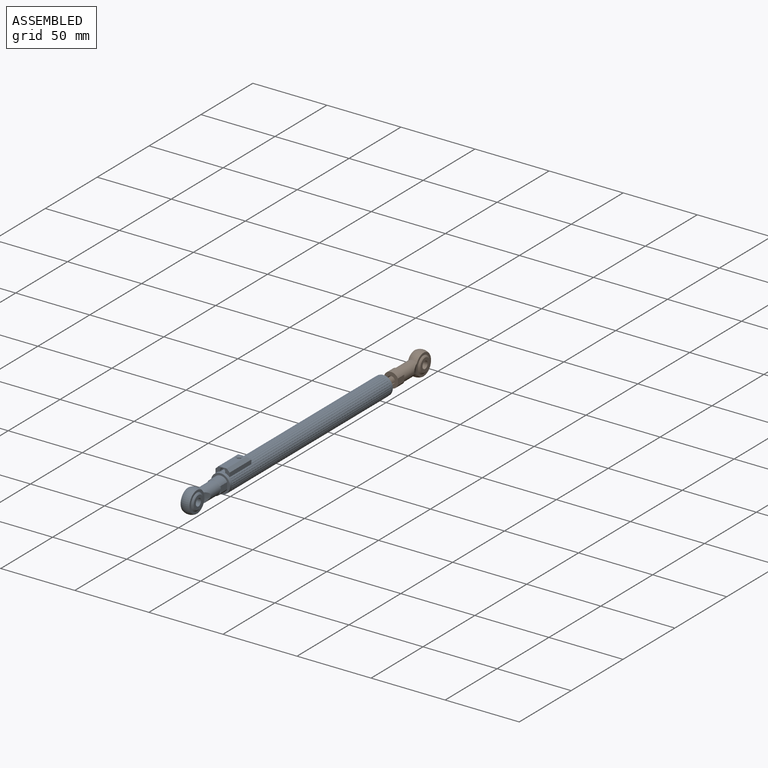
[diagram: assembled view]
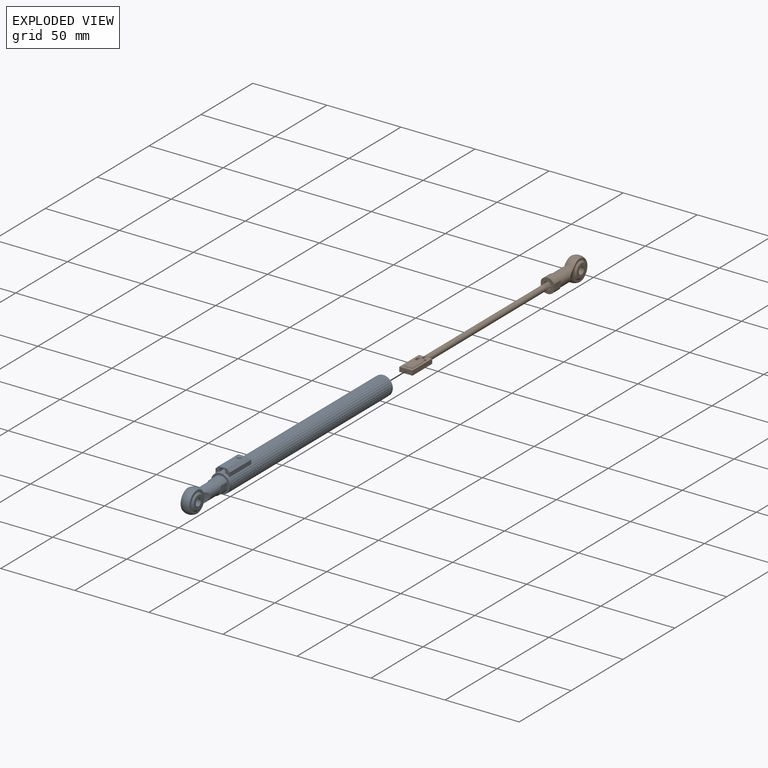
[diagram: exploded view]
GUIDED TOUR — MATED ASSEMBLY WITH SUBASSEMBLIES (Onshape document 5767a6d5e4b083dafd354f5f, AutoMate assembly 5767a6d5e4b083dafd354f5f_b1f9ebcb819ccfe5c1a02eb4_7ac58bc75394bbe022b69a2b_default)

This assembly has 11 component occurrences arranged in 2 top-level units: 0 individual components plus 2 subassemblies (S0, S1). The tour has two levels: first the top level, where each subassembly is treated as one rigid unit; then each subassembly is toured internally in its own section (nesting deeper than one subassembly level is flattened into its subassembly's section).

Components are labeled P0..P10 across the whole record; subassembly units are labeled S0..S1. A mate is a constraint between two units; its type names the relative motion it leaves free:
  FASTENED — locks the two components together rigidly (no relative motion),
  REVOLUTE — leaves rotation about the listed axis free (a hinge),
  SLIDER — leaves translation along the listed axis free.
Axis/direction vectors are unit vectors and 'through' points are millimeter coordinates, both in the assembly's world frame.

TOP-LEVEL MATES (between units; each subassembly's internal mates are listed in its own section)
  1. SLIDER "Slider 1": S1 <-> S0, axis (0.000, -1.000, 0.000) through (0.10, -31.68, 0.15) mm

TOP-LEVEL ASSEMBLY ORDER
  1. S0 — the base component [order verified]
  2. S1 [order verified]
Order-tag legend:
  [order verified] — this step's position reverses a verified removal order: the component was checked to insert without passing through the ones already placed.

Of the 11 component occurrences, 8 carry the full construction recipe — the FeatureScript program that regenerates the part's solid from scratch; the rest are supplied as boundary geometry only. Each toured unit is shown spotlighted twice — assembled, then exploded with a leader line back to its socket (green = recipe-attached component, orange = geometry-only, blue = subassembly unit; the rest desaturated gray).
NOTE — this tour is split across 2 documents so each fits a 32k-token context. This is document 1: the component sections continue in the remaining 1 document, each repeating the header above.
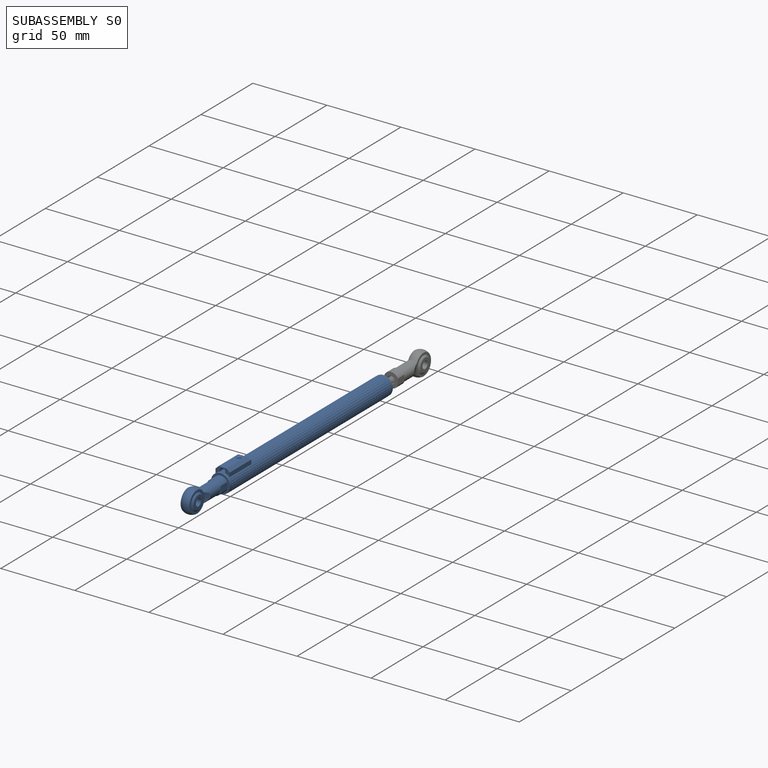
[diagram: subassembly S0 — assembled]
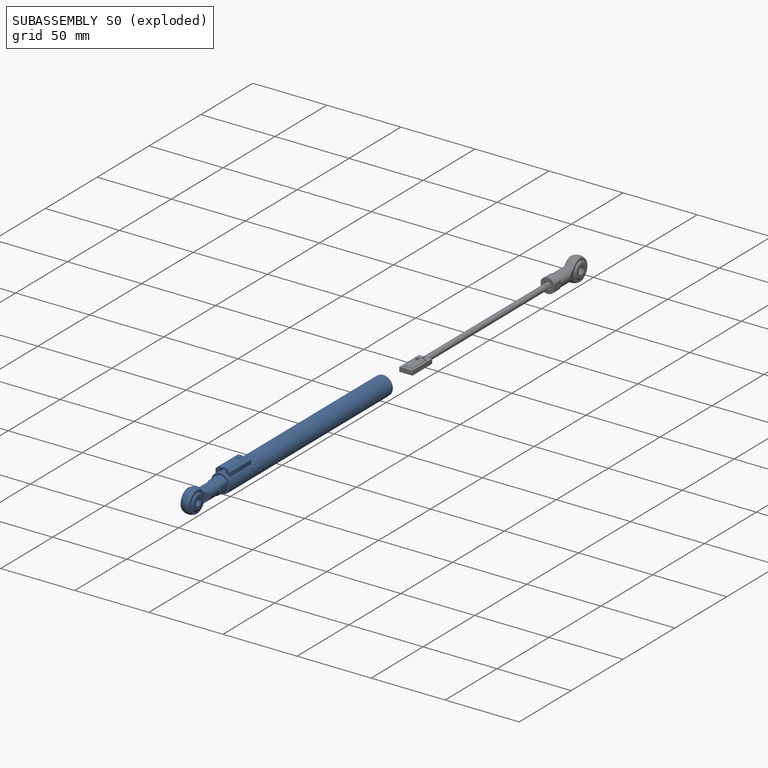
[diagram: subassembly S0 — exploded]
SUBASSEMBLY S0 — 8 components (P0, P2, P3, P4, P5, P6, P8, P10), of which 7 recipe-attached; toured below.
Held by: SLIDER mate "Slider 1" to S1.
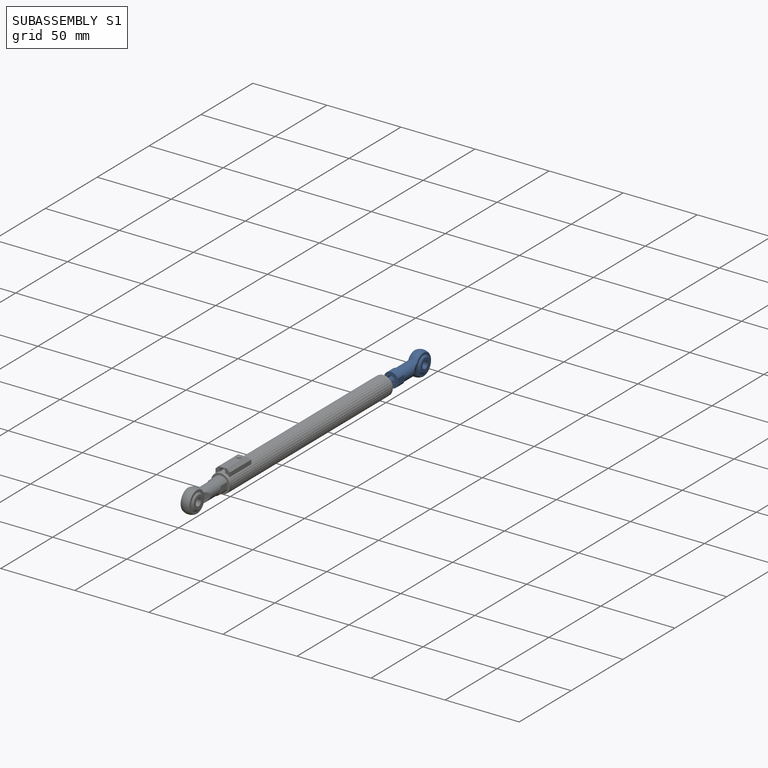
[diagram: subassembly S1 — assembled]
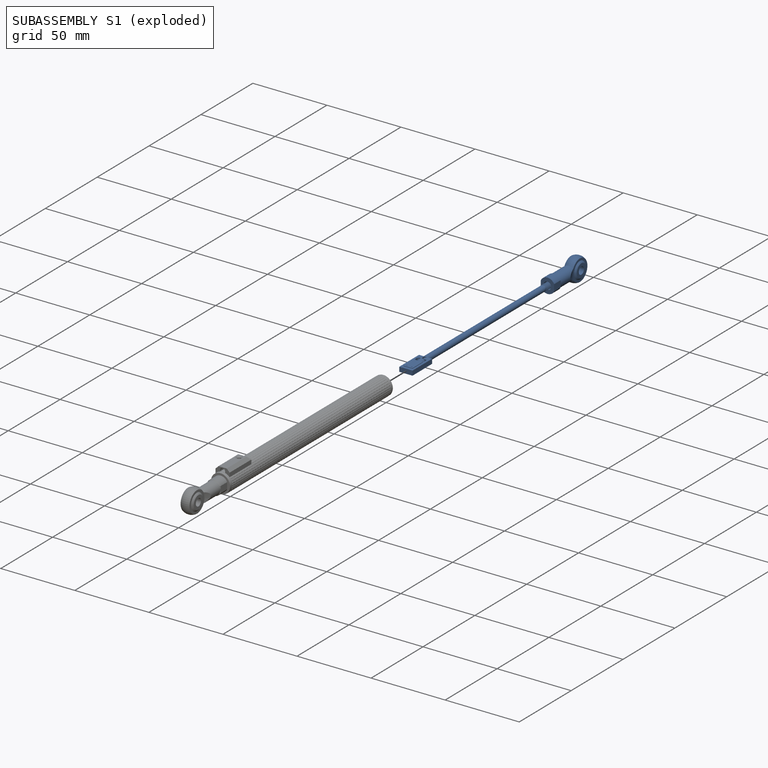
[diagram: subassembly S1 — exploded]
SUBASSEMBLY S1 — 3 components (P1, P7, P9), of which 1 recipe-attached; toured below.
Held by: SLIDER mate "Slider 1" to S0.
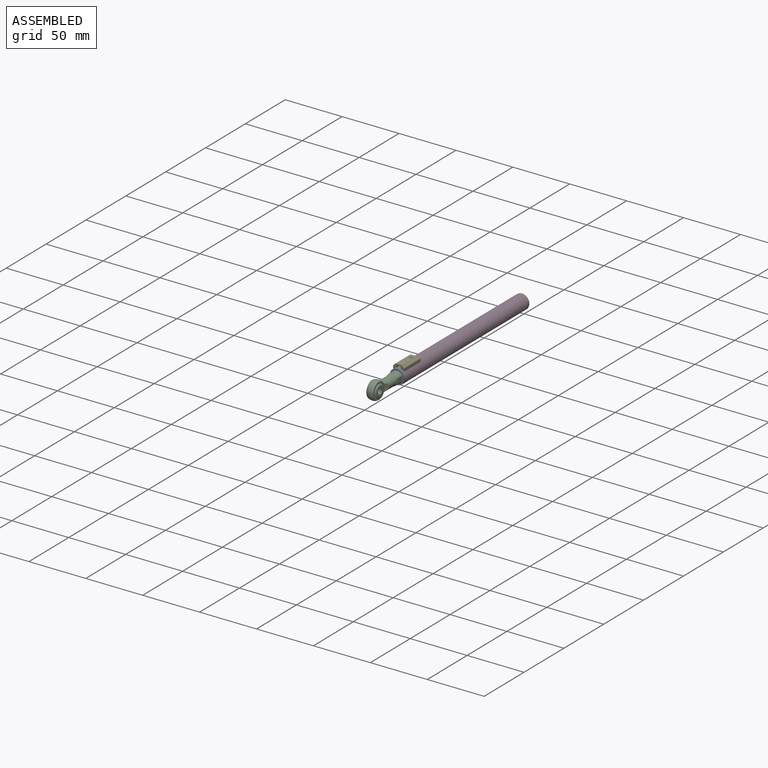
[diagram: subassembly S0 — assembled view]
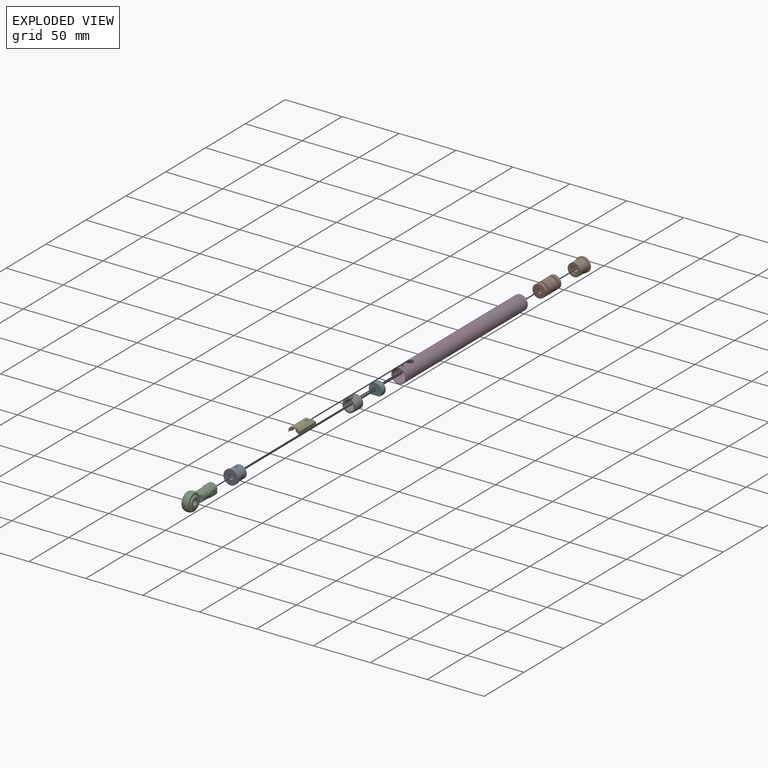
[diagram: subassembly S0 — exploded view]
SUBASSEMBLY S0 TOUR — 8 components, shown here in isolation at its own camera.

INTERNAL MATES
  1. FASTENED "Fastened 2": P8 <-> P6, direction (0.000, 1.000, 0.000) through (0.10, -36.68, -0.22) mm
  2. FASTENED "Fastened 5": P4 <-> P10, direction (0.000, 1.000, 0.000) through (0.10, 64.32, -0.22) mm
  3. FASTENED "Fastened 1": P6 <-> P4, direction (0.000, 1.000, 0.000) through (0.10, -31.68, -0.22) mm
  4. FASTENED "Fastened 4": P4 <-> P0, direction (0.000, -1.000, 0.000) through (0.10, -57.68, -0.22) mm
  5. REVOLUTE "Revolute 1": P4 <-> P2, axis (0.000, 1.000, 0.000) through (0.10, 95.32, -0.22) mm
  6. FASTENED "Fastened 3": P3 <-> P0, direction (0.000, 1.000, 0.000) through (0.10, -59.68, -0.22) mm
  7. FASTENED "Fastened 6": P5 <-> P0, direction (0.000, -1.000, 0.000) through (0.10, -57.68, -0.22) mm
  8. FASTENED "Fastened 6": P5 <-> P0, direction (0.000, -1.000, 0.000) through (0.10, -57.68, -0.22) mm
  9. FASTENED "Fastened 3": P3 <-> P0, direction (0.000, 1.000, 0.000) through (0.10, -59.68, -0.22) mm
  10. FASTENED "Fastened 4": P4 <-> P0, direction (0.000, -1.000, 0.000) through (0.10, -57.68, -0.22) mm
  11. FASTENED "Fastened 1": P6 <-> P4, direction (0.000, 1.000, 0.000) through (0.10, -31.68, -0.22) mm
  12. REVOLUTE "Revolute 1": P4 <-> P2, axis (0.000, 1.000, 0.000) through (0.10, 95.32, -0.22) mm
  13. FASTENED "Fastened 5": P4 <-> P10, direction (0.000, 1.000, 0.000) through (0.10, 64.32, -0.22) mm
  14. FASTENED "Fastened 2": P8 <-> P6, direction (0.000, 1.000, 0.000) through (0.10, -36.68, -0.22) mm

ASSEMBLY ORDER (within the subassembly)
  1. P4 — the base component [order heuristic]
  2. P6 [order verified]
  3. P8 — core [order heuristic]
  4. P10 — core [order heuristic]
  5. P0 — core [order heuristic]
  6. P2 [order verified]
  7. P5 [order verified]
  8. P3 [order verified]
Order-tag legend:
  [order verified] — this step's position reverses a verified removal order: the component was checked to insert without passing through the ones already placed.
  [order heuristic] — the first 4 components form the assembly's core: parts whose collision-free extraction could not be verified, listed in mate-graph order.
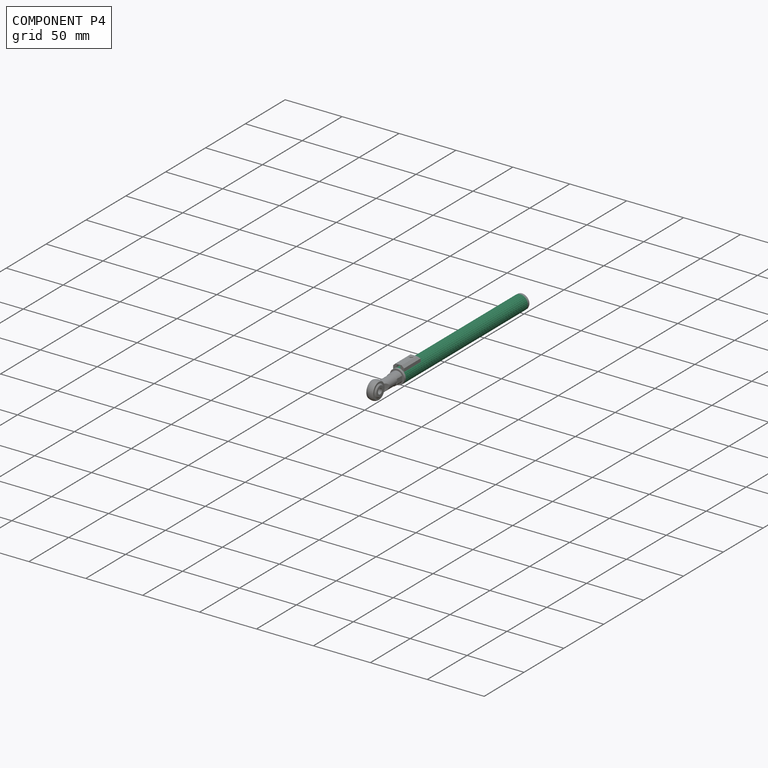
[diagram: component P4 — assembled]
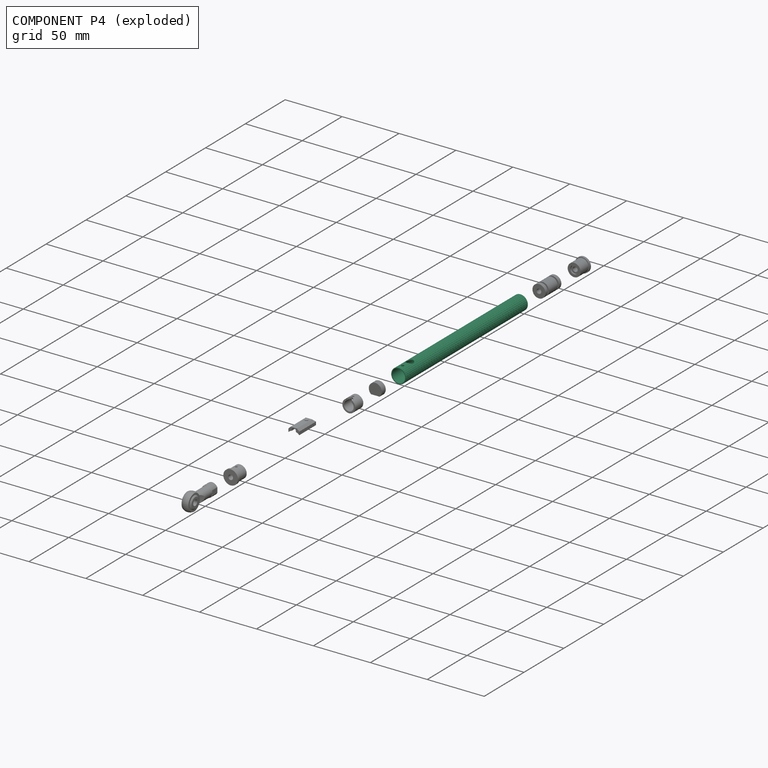
[diagram: component P4 — exploded]
COMPONENT P4 — recipe-attached (CADFS 00175643, mesh-verified: the recipe's output STEP matches this component's geometry to below the mesh-comparison resolution (tessellation chordal tolerance ~0.231 mm)).
Held by: FASTENED mate "Fastened 5" to P10; FASTENED mate "Fastened 1" to P6; FASTENED mate "Fastened 4" to P0; REVOLUTE mate "Revolute 1" to P2; FASTENED mate "Fastened 4" to P0; FASTENED mate "Fastened 1" to P6; REVOLUTE mate "Revolute 1" to P2; FASTENED mate "Fastened 5" to P10.
Construction recipe (FeatureScript — the CAD program that rebuilds this solid; sketch coordinates are in the units given by the * unit suffixes, e.g. mm):

FeatureScript 1511;
import(path : "onshape/std/geometry.fs", version : "1511.0");
import(path : "onshape/std/common.fs", version : "1511.0");
const mm = millimeter;
const VERTEX = EntityType.VERTEX;
const EDGE = EntityType.EDGE;
const FACE = EntityType.FACE;
const BODY = EntityType.BODY;
function v(x, y){return vector(x, y);}
function OD(order){return orderDisambiguation(order);}
function OSD(set){return originalSetDisambiguation(set);}
function TD(topology){return topologyDisambiguation(topology);}
function TDD(query){return trueDependencyDisambiguation(query);}
function sQuery(a, b, c) {return sketchEntityQuery(a, b, c);}

annotation { "Feature Type Name" : "Feature", "Feature Type Description" : "" }
export const myFeature = defineFeature(function(context is Context, id is Id, definition is map)
    precondition{}
    {
        {
            assignVariable(context, id + "F0", {"name" : "Main_Length", "anyValue" : 153});
        }
        {
            assignVariable(context, id + "F1", {"name" : "Bore_Depth_F", "anyValue" : 26});
        }
        {
            assignVariable(context, id + "F2", {"name" : "Bore_Depth_R", "anyValue" : 31});
        }
        {
            var Q0;
            Q0=qCreatedBy(makeId("Front.planeOp"),FACE);
            var sketch = newSketch(context, id + "F3", { "sketchPlane" : qUnion([Q0])});
            skLineSegment(sketch, "E0", {"start": v(-3.5, -2.5) * mm, "end": v(-3.5, -1.85) * mm});
            skLineSegment(sketch, "E1", {"start": v(6.33, 0.97) * mm, "end": v(6.44, 0.88) * mm});
            skArc(sketch, "E2", {"start": v(-3.6, -1.75) * mm, "mid": v(-3.53, -1.78) * mm, "end": v(-3.5, -1.85) * mm});
            skArc(sketch, "E3", {"start": v(4.25, 3.55) * mm, "mid": v(4.32, 3.52) * mm, "end": v(4.35, 3.45) * mm});
            skArc(sketch, "E4", {"start": v(-3.5, -4.24) * mm, "mid": v(0, -5.5) * mm, "end": v(3.5, -4.24) * mm});
            skLineSegment(sketch, "E5", {"start": v(1.03, 6.32) * mm, "end": v(1.16, 6.4) * mm});
            skLineSegment(sketch, "E6", {"start": v(-4.95, -4.05) * mm, "end": v(-4.96, -4.2) * mm});
            skArc(sketch, "E7", {"start": v(-5.73, -3.08) * mm, "mid": v(-5.63, -3.25) * mm, "end": v(-5.53, -3.42) * mm});
            skLineSegment(sketch, "E8", {"start": v(3.51, 5.35) * mm, "end": v(3.66, 5.37) * mm});
            skLineSegment(sketch, "E9", {"start": v(4.65, -1.65) * mm, "end": v(4.65, 0) * mm});
            skLineSegment(sketch, "E10", {"start": v(-1.63, -6.19) * mm, "end": v(-1.55, -6.31) * mm});
            skArc(sketch, "E11", {"start": v(6.12, -2.2) * mm, "mid": v(6.18, -2) * mm, "end": v(6.24, -1.82) * mm});
            skArc(sketch, "E12", {"start": v(-2.83, -5.85) * mm, "mid": v(-2.64, -5.94) * mm, "end": v(-2.46, -6.02) * mm});
            skArc(sketch, "E13", {"start": v(2.83, 5.85) * mm, "mid": v(2.64, 5.94) * mm, "end": v(2.46, 6.02) * mm});
            skLineSegment(sketch, "E14", {"start": v(4.55, 4.5) * mm, "end": v(4.7, 4.5) * mm});
            skArc(sketch, "E15", {"start": v(-4.35, 2.7) * mm, "mid": v(-4.32, 2.63) * mm, "end": v(-4.25, 2.6) * mm});
            skArc(sketch, "E16", {"start": v(3.98, 5.14) * mm, "mid": v(3.82, 5.26) * mm, "end": v(3.66, 5.37) * mm});
            skLineSegment(sketch, "E17", {"start": v(-6.33, 0.97) * mm, "end": v(-6.44, 0.88) * mm});
            skArc(sketch, "E18", {"start": v(1.16, -6.4) * mm, "mid": v(1.35, -6.36) * mm, "end": v(1.55, -6.31) * mm});
            skLineSegment(sketch, "E19", {"start": v(-4, 5) * mm, "end": v(-3.98, 5.14) * mm});
            skArc(sketch, "E20", {"start": v(-1.55, -6.31) * mm, "mid": v(-1.35, -6.36) * mm, "end": v(-1.16, -6.4) * mm});
            skLineSegment(sketch, "E21", {"start": v(5.38, 3.46) * mm, "end": v(5.53, 3.42) * mm});
            skLineSegment(sketch, "E22", {"start": v(1.63, 6.19) * mm, "end": v(1.55, 6.31) * mm});
            skArc(sketch, "E23", {"start": v(3.5, -2.5) * mm, "mid": v(3.53, -2.57) * mm, "end": v(3.6, -2.6) * mm});
            skLineSegment(sketch, "E24", {"start": v(4, -5) * mm, "end": v(3.98, -5.14) * mm});
            skArc(sketch, "E25", {"start": v(3.6, 1.75) * mm, "mid": v(3.53, 1.78) * mm, "end": v(3.5, 1.85) * mm});
            skArc(sketch, "E26", {"start": v(2.88, -5.72) * mm, "mid": v(3.2, -5.54) * mm, "end": v(3.51, -5.35) * mm});
            skArc(sketch, "E27", {"start": v(-3.6, 3.55) * mm, "mid": v(-3.53, 3.58) * mm, "end": v(-3.5, 3.65) * mm});
            skArc(sketch, "E28", {"start": v(-5.53, 3.42) * mm, "mid": v(-5.63, 3.25) * mm, "end": v(-5.73, 3.08) * mm});
            skLineSegment(sketch, "E29", {"start": v(5.38, -3.46) * mm, "end": v(5.53, -3.42) * mm});
            skArc(sketch, "E30", {"start": v(5.73, 3.08) * mm, "mid": v(5.63, 3.25) * mm, "end": v(5.53, 3.42) * mm});
            skLineSegment(sketch, "E31", {"start": v(-4.25, 2.6) * mm, "end": v(-3.6, 2.6) * mm});
            skLineSegment(sketch, "E32", {"start": v(-3.5, 2.5) * mm, "end": v(-3.5, 1.85) * mm});
            skArc(sketch, "E33", {"start": v(6.24, 1.82) * mm, "mid": v(6.18, 2) * mm, "end": v(6.12, 2.2) * mm});
            skLineSegment(sketch, "E34", {"start": v(4.25, 2.6) * mm, "end": v(3.6, 2.6) * mm});
            skLineSegment(sketch, "E35", {"start": v(2.88, -5.72) * mm, "end": v(2.83, -5.85) * mm});
            skLineSegment(sketch, "E36", {"start": v(3.5, 4.24) * mm, "end": v(3.5, 3.65) * mm});
            skArc(sketch, "E37", {"start": v(5.99, 2.26) * mm, "mid": v(5.85, 2.6) * mm, "end": v(5.69, 2.93) * mm});
            skArc(sketch, "E38", {"start": v(0.3, -6.4) * mm, "mid": v(0.67, -6.36) * mm, "end": v(1.03, -6.32) * mm});
            skArc(sketch, "E39", {"start": v(6.48, 0.48) * mm, "mid": v(6.46, 0.68) * mm, "end": v(6.44, 0.88) * mm});
            skArc(sketch, "E40", {"start": v(-2.88, 5.72) * mm, "mid": v(-3.2, 5.54) * mm, "end": v(-3.51, 5.35) * mm});
            skLineSegment(sketch, "E41", {"start": v(-0.3, 6.4) * mm, "end": v(-0.2, 6.5) * mm});
            skLineSegment(sketch, "E42", {"start": v(5.69, 2.93) * mm, "end": v(5.73, 3.08) * mm});
            skLineSegment(sketch, "E43", {"start": v(1.63, -6.19) * mm, "end": v(1.55, -6.31) * mm});
            skArc(sketch, "E44", {"start": v(-0.3, 6.4) * mm, "mid": v(-0.67, 6.36) * mm, "end": v(-1.03, 6.32) * mm});
            skLineSegment(sketch, "E45", {"start": v(-3.51, 5.35) * mm, "end": v(-3.66, 5.37) * mm});
            skLineSegment(sketch, "E46", {"start": v(-1.63, 6.19) * mm, "end": v(-1.55, 6.31) * mm});
            skLineSegment(sketch, "E47", {"start": v(4.55, -4.5) * mm, "end": v(4.7, -4.5) * mm});
            skArc(sketch, "E48", {"start": v(6.44, -0.88) * mm, "mid": v(6.46, -0.68) * mm, "end": v(6.48, -0.48) * mm});
            skArc(sketch, "E49", {"start": v(-2.46, 6.02) * mm, "mid": v(-2.64, 5.94) * mm, "end": v(-2.83, 5.85) * mm});
            skArc(sketch, "E50", {"start": v(6.33, 0.97) * mm, "mid": v(6.26, 1.33) * mm, "end": v(6.17, 1.69) * mm});
            skArc(sketch, "E51", {"start": v(3.6, 3.55) * mm, "mid": v(3.53, 3.58) * mm, "end": v(3.5, 3.65) * mm});
            skLineSegment(sketch, "E52", {"start": v(3.5, 2.5) * mm, "end": v(3.5, 1.85) * mm});
            skArc(sketch, "E53", {"start": v(-0.2, -6.5) * mm, "mid": v(0, -6.5) * mm, "end": v(0.2, -6.5) * mm});
            skArc(sketch, "E54", {"start": v(4.96, 4.2) * mm, "mid": v(4.83, 4.35) * mm, "end": v(4.7, 4.5) * mm});
            skLineSegment(sketch, "E55", {"start": v(2.32, 5.96) * mm, "end": v(2.46, 6.02) * mm});
            skArc(sketch, "E56", {"start": v(4.35, 2.7) * mm, "mid": v(4.32, 2.63) * mm, "end": v(4.25, 2.6) * mm});
            skLineSegment(sketch, "E57", {"start": v(-4.65, -1.65) * mm, "end": v(-4.65, 0) * mm});
            skArc(sketch, "E58", {"start": v(-1.63, 6.19) * mm, "mid": v(-1.98, 6.09) * mm, "end": v(-2.32, 5.96) * mm});
            skLineSegment(sketch, "E59", {"start": v(-1.03, 6.32) * mm, "end": v(-1.16, 6.4) * mm});
            skLineSegment(sketch, "E60", {"start": v(0.3, -6.4) * mm, "end": v(0.2, -6.5) * mm});
            skArc(sketch, "E61", {"start": v(-4.7, 4.5) * mm, "mid": v(-4.83, 4.35) * mm, "end": v(-4.96, 4.2) * mm});
            skArc(sketch, "E62", {"start": v(-5.69, 2.93) * mm, "mid": v(-5.85, 2.6) * mm, "end": v(-5.99, 2.26) * mm});
            skArc(sketch, "E63", {"start": v(4.25, -3.55) * mm, "mid": v(4.32, -3.52) * mm, "end": v(4.35, -3.45) * mm});
            skLineSegment(sketch, "E64", {"start": v(-4.35, 3.45) * mm, "end": v(-4.35, 2.7) * mm});
            skLineSegment(sketch, "E65", {"start": v(-4.65, 1.65) * mm, "end": v(-4.65, 0) * mm});
            skArc(sketch, "E66", {"start": v(5.69, -2.93) * mm, "mid": v(5.85, -2.6) * mm, "end": v(5.99, -2.26) * mm});
            skArc(sketch, "E67", {"start": v(-4.55, 1.75) * mm, "mid": v(-4.62, 1.72) * mm, "end": v(-4.65, 1.65) * mm});
            skLineSegment(sketch, "E68", {"start": v(-3.5, 4.24) * mm, "end": v(-3.5, 3.65) * mm});
            skLineSegment(sketch, "E69", {"start": v(-3.6, 3.55) * mm, "end": v(-4.25, 3.55) * mm});
            skLineSegment(sketch, "E70", {"start": v(-3.6, 1.75) * mm, "end": v(-4.55, 1.75) * mm});
            skArc(sketch, "E71", {"start": v(-3.5, 2.5) * mm, "mid": v(-3.53, 2.57) * mm, "end": v(-3.6, 2.6) * mm});
            skArc(sketch, "E72", {"start": v(-3.6, 1.75) * mm, "mid": v(-3.53, 1.78) * mm, "end": v(-3.5, 1.85) * mm});
            skArc(sketch, "E73", {"start": v(-4.25, 3.55) * mm, "mid": v(-4.32, 3.52) * mm, "end": v(-4.35, 3.45) * mm});
            skArc(sketch, "E74", {"start": v(4.55, 1.75) * mm, "mid": v(4.62, 1.72) * mm, "end": v(4.65, 1.65) * mm});
            skLineSegment(sketch, "E75", {"start": v(3.6, 1.75) * mm, "end": v(4.55, 1.75) * mm});
            skArc(sketch, "E76", {"start": v(3.5, 2.5) * mm, "mid": v(3.53, 2.57) * mm, "end": v(3.6, 2.6) * mm});
            skArc(sketch, "E77", {"start": v(0.2, 6.5) * mm, "mid": v(0, 6.5) * mm, "end": v(-0.2, 6.5) * mm});
            skLineSegment(sketch, "E78", {"start": v(3.6, 3.55) * mm, "end": v(4.25, 3.55) * mm});
            skLineSegment(sketch, "E79", {"start": v(4.65, 1.65) * mm, "end": v(4.65, 0) * mm});
            skLineSegment(sketch, "E80", {"start": v(4.35, 3.45) * mm, "end": v(4.35, 2.7) * mm});
            skArc(sketch, "E81", {"start": v(-3.6, -3.55) * mm, "mid": v(-3.53, -3.58) * mm, "end": v(-3.5, -3.65) * mm});
            skLineSegment(sketch, "E82", {"start": v(-4.25, -2.6) * mm, "end": v(-3.6, -2.6) * mm});
            skLineSegment(sketch, "E83", {"start": v(-3.6, -1.75) * mm, "end": v(-4.55, -1.75) * mm});
            skArc(sketch, "E84", {"start": v(-3.5, -2.5) * mm, "mid": v(-3.53, -2.57) * mm, "end": v(-3.6, -2.6) * mm});
            skArc(sketch, "E85", {"start": v(-4.55, -1.75) * mm, "mid": v(-4.62, -1.72) * mm, "end": v(-4.65, -1.65) * mm});
            skArc(sketch, "E86", {"start": v(-4.35, -2.7) * mm, "mid": v(-4.32, -2.63) * mm, "end": v(-4.25, -2.6) * mm});
            skArc(sketch, "E87", {"start": v(-4.25, -3.55) * mm, "mid": v(-4.32, -3.52) * mm, "end": v(-4.35, -3.45) * mm});
            skArc(sketch, "E88", {"start": v(3.6, -1.75) * mm, "mid": v(3.53, -1.78) * mm, "end": v(3.5, -1.85) * mm});
            skLineSegment(sketch, "E89", {"start": v(-2.32, 5.96) * mm, "end": v(-2.46, 6.02) * mm});
            skArc(sketch, "E90", {"start": v(4.55, -1.75) * mm, "mid": v(4.62, -1.72) * mm, "end": v(4.65, -1.65) * mm});
            skLineSegment(sketch, "E91", {"start": v(3.6, -1.75) * mm, "end": v(4.55, -1.75) * mm});
            skArc(sketch, "E92", {"start": v(4.35, -2.7) * mm, "mid": v(4.32, -2.63) * mm, "end": v(4.25, -2.6) * mm});
            skLineSegment(sketch, "E93", {"start": v(4.25, -2.6) * mm, "end": v(3.6, -2.6) * mm});
            skArc(sketch, "E94", {"start": v(3.6, -3.55) * mm, "mid": v(3.53, -3.58) * mm, "end": v(3.5, -3.65) * mm});
            skLineSegment(sketch, "E95", {"start": v(-3.5, -4.24) * mm, "end": v(-3.5, -3.65) * mm});
            skLineSegment(sketch, "E96", {"start": v(3.5, -2.5) * mm, "end": v(3.5, -1.85) * mm});
            skLineSegment(sketch, "E97", {"start": v(4.35, -3.45) * mm, "end": v(4.35, -2.7) * mm});
            skLineSegment(sketch, "E98", {"start": v(-3.6, -3.55) * mm, "end": v(-4.25, -3.55) * mm});
            skArc(sketch, "E99", {"start": v(-6.12, 2.2) * mm, "mid": v(-6.18, 2) * mm, "end": v(-6.24, 1.82) * mm});
            skLineSegment(sketch, "E100", {"start": v(-4.35, -3.45) * mm, "end": v(-4.35, -2.7) * mm});
            skLineSegment(sketch, "E101", {"start": v(3.6, -3.55) * mm, "end": v(4.25, -3.55) * mm});
            skLineSegment(sketch, "E102", {"start": v(-5.38, 3.46) * mm, "end": v(-5.53, 3.42) * mm});
            skLineSegment(sketch, "E103", {"start": v(3.5, -4.24) * mm, "end": v(3.5, -3.65) * mm});
            skArc(sketch, "E104", {"start": v(3.5, 4.24) * mm, "mid": v(0, 5.5) * mm, "end": v(-3.5, 4.24) * mm});
            skLineSegment(sketch, "E105", {"start": v(-0.3, -6.4) * mm, "end": v(-0.2, -6.5) * mm});
            skArc(sketch, "E106", {"start": v(1.63, -6.19) * mm, "mid": v(1.98, -6.09) * mm, "end": v(2.32, -5.96) * mm});
            skLineSegment(sketch, "E107", {"start": v(1.03, -6.32) * mm, "end": v(1.16, -6.4) * mm});
            skArc(sketch, "E108", {"start": v(2.46, -6.02) * mm, "mid": v(2.64, -5.94) * mm, "end": v(2.83, -5.85) * mm});
            skArc(sketch, "E109", {"start": v(-6.24, -1.82) * mm, "mid": v(-6.18, -2) * mm, "end": v(-6.12, -2.2) * mm});
            skLineSegment(sketch, "E110", {"start": v(2.32, -5.96) * mm, "end": v(2.46, -6.02) * mm});
            skArc(sketch, "E111", {"start": v(4, -5) * mm, "mid": v(4.28, -4.76) * mm, "end": v(4.55, -4.5) * mm});
            skArc(sketch, "E112", {"start": v(3.66, -5.37) * mm, "mid": v(3.82, -5.26) * mm, "end": v(3.98, -5.14) * mm});
            skLineSegment(sketch, "E113", {"start": v(3.51, -5.35) * mm, "end": v(3.66, -5.37) * mm});
            skLineSegment(sketch, "E114", {"start": v(-3.51, -5.35) * mm, "end": v(-3.66, -5.37) * mm});
            skLineSegment(sketch, "E115", {"start": v(4.95, -4.05) * mm, "end": v(4.96, -4.2) * mm});
            skLineSegment(sketch, "E116", {"start": v(-4.55, -4.5) * mm, "end": v(-4.7, -4.5) * mm});
            skArc(sketch, "E117", {"start": v(5.53, -3.42) * mm, "mid": v(5.63, -3.25) * mm, "end": v(5.73, -3.08) * mm});
            skArc(sketch, "E118", {"start": v(4.7, -4.5) * mm, "mid": v(4.83, -4.35) * mm, "end": v(4.96, -4.2) * mm});
            skArc(sketch, "E119", {"start": v(-3.98, -5.14) * mm, "mid": v(-3.82, -5.26) * mm, "end": v(-3.66, -5.37) * mm});
            skArc(sketch, "E120", {"start": v(6.17, -1.69) * mm, "mid": v(6.26, -1.33) * mm, "end": v(6.33, -0.97) * mm});
            skLineSegment(sketch, "E121", {"start": v(6.17, -1.69) * mm, "end": v(6.24, -1.82) * mm});
            skLineSegment(sketch, "E122", {"start": v(5.99, -2.26) * mm, "end": v(6.12, -2.2) * mm});
            skArc(sketch, "E123", {"start": v(6.39, -0.37) * mm, "mid": v(6.4, 0) * mm, "end": v(6.39, 0.37) * mm});
            skLineSegment(sketch, "E124", {"start": v(6.39, -0.37) * mm, "end": v(6.48, -0.48) * mm});
            skLineSegment(sketch, "E125", {"start": v(-1.03, -6.32) * mm, "end": v(-1.16, -6.4) * mm});
            skLineSegment(sketch, "E126", {"start": v(6.33, -0.97) * mm, "end": v(6.44, -0.88) * mm});
            skLineSegment(sketch, "E127", {"start": v(5.99, 2.26) * mm, "end": v(6.12, 2.2) * mm});
            skLineSegment(sketch, "E128", {"start": v(6.17, 1.69) * mm, "end": v(6.24, 1.82) * mm});
            skArc(sketch, "E129", {"start": v(5.38, 3.46) * mm, "mid": v(5.18, 3.76) * mm, "end": v(4.95, 4.05) * mm});
            skArc(sketch, "E130", {"start": v(4.55, 4.5) * mm, "mid": v(4.28, 4.76) * mm, "end": v(4, 5) * mm});
            skLineSegment(sketch, "E131", {"start": v(4.95, 4.05) * mm, "end": v(4.96, 4.2) * mm});
            skArc(sketch, "E132", {"start": v(3.51, 5.35) * mm, "mid": v(3.2, 5.54) * mm, "end": v(2.88, 5.72) * mm});
            skLineSegment(sketch, "E133", {"start": v(4, 5) * mm, "end": v(3.98, 5.14) * mm});
            skArc(sketch, "E134", {"start": v(2.32, 5.96) * mm, "mid": v(1.98, 6.09) * mm, "end": v(1.63, 6.19) * mm});
            skLineSegment(sketch, "E135", {"start": v(2.88, 5.72) * mm, "end": v(2.83, 5.85) * mm});
            skArc(sketch, "E136", {"start": v(1.03, 6.32) * mm, "mid": v(0.67, 6.36) * mm, "end": v(0.3, 6.4) * mm});
            skArc(sketch, "E137", {"start": v(1.55, 6.31) * mm, "mid": v(1.35, 6.36) * mm, "end": v(1.16, 6.4) * mm});
            skLineSegment(sketch, "E138", {"start": v(0.3, 6.4) * mm, "end": v(0.2, 6.5) * mm});
            skArc(sketch, "E139", {"start": v(-1.16, 6.4) * mm, "mid": v(-1.35, 6.36) * mm, "end": v(-1.55, 6.31) * mm});
            skLineSegment(sketch, "E140", {"start": v(-2.88, 5.72) * mm, "end": v(-2.83, 5.85) * mm});
            skArc(sketch, "E141", {"start": v(-4, 5) * mm, "mid": v(-4.28, 4.76) * mm, "end": v(-4.55, 4.5) * mm});
            skArc(sketch, "E142", {"start": v(-3.66, 5.37) * mm, "mid": v(-3.82, 5.26) * mm, "end": v(-3.98, 5.14) * mm});
            skLineSegment(sketch, "E143", {"start": v(-6.33, -0.97) * mm, "end": v(-6.44, -0.88) * mm});
            skLineSegment(sketch, "E144", {"start": v(-4.95, 4.05) * mm, "end": v(-4.96, 4.2) * mm});
            skLineSegment(sketch, "E145", {"start": v(-4.55, 4.5) * mm, "end": v(-4.7, 4.5) * mm});
            skArc(sketch, "E146", {"start": v(-6.17, 1.69) * mm, "mid": v(-6.26, 1.33) * mm, "end": v(-6.33, 0.97) * mm});
            skLineSegment(sketch, "E147", {"start": v(-6.17, 1.69) * mm, "end": v(-6.24, 1.82) * mm});
            skLineSegment(sketch, "E148", {"start": v(-5.99, 2.26) * mm, "end": v(-6.12, 2.2) * mm});
            skArc(sketch, "E149", {"start": v(-6.39, 0.37) * mm, "mid": v(-6.4, 0) * mm, "end": v(-6.39, -0.37) * mm});
            skArc(sketch, "E150", {"start": v(-6.44, 0.88) * mm, "mid": v(-6.46, 0.68) * mm, "end": v(-6.48, 0.48) * mm});
            skLineSegment(sketch, "E151", {"start": v(-6.39, 0.37) * mm, "end": v(-6.48, 0.48) * mm});
            skLineSegment(sketch, "E152", {"start": v(5.69, -2.93) * mm, "end": v(5.73, -3.08) * mm});
            skArc(sketch, "E153", {"start": v(-6.33, -0.97) * mm, "mid": v(-6.26, -1.33) * mm, "end": v(-6.17, -1.69) * mm});
            skArc(sketch, "E154", {"start": v(-6.48, -0.48) * mm, "mid": v(-6.46, -0.68) * mm, "end": v(-6.44, -0.88) * mm});
            skLineSegment(sketch, "E155", {"start": v(-6.39, -0.37) * mm, "end": v(-6.48, -0.48) * mm});
            skArc(sketch, "E156", {"start": v(-5.99, -2.26) * mm, "mid": v(-5.85, -2.6) * mm, "end": v(-5.69, -2.93) * mm});
            skLineSegment(sketch, "E157", {"start": v(-5.99, -2.26) * mm, "end": v(-6.12, -2.2) * mm});
            skLineSegment(sketch, "E158", {"start": v(-6.17, -1.69) * mm, "end": v(-6.24, -1.82) * mm});
            skArc(sketch, "E159", {"start": v(-5.38, -3.46) * mm, "mid": v(-5.18, -3.76) * mm, "end": v(-4.95, -4.05) * mm});
            skLineSegment(sketch, "E160", {"start": v(-5.38, -3.46) * mm, "end": v(-5.53, -3.42) * mm});
            skLineSegment(sketch, "E161", {"start": v(-5.69, -2.93) * mm, "end": v(-5.73, -3.08) * mm});
            skArc(sketch, "E162", {"start": v(-4.55, -4.5) * mm, "mid": v(-4.28, -4.76) * mm, "end": v(-4, -5) * mm});
            skLineSegment(sketch, "E163", {"start": v(6.39, 0.37) * mm, "end": v(6.48, 0.48) * mm});
            skArc(sketch, "E164", {"start": v(-4.96, -4.2) * mm, "mid": v(-4.83, -4.35) * mm, "end": v(-4.7, -4.5) * mm});
            skArc(sketch, "E165", {"start": v(4.95, -4.05) * mm, "mid": v(5.18, -3.76) * mm, "end": v(5.38, -3.46) * mm});
            skLineSegment(sketch, "E166", {"start": v(-4, -5) * mm, "end": v(-3.98, -5.14) * mm});
            skArc(sketch, "E167", {"start": v(-2.32, -5.96) * mm, "mid": v(-1.98, -6.09) * mm, "end": v(-1.63, -6.19) * mm});
            skLineSegment(sketch, "E168", {"start": v(-2.32, -5.96) * mm, "end": v(-2.46, -6.02) * mm});
            skLineSegment(sketch, "E169", {"start": v(-2.88, -5.72) * mm, "end": v(-2.83, -5.85) * mm});
            skArc(sketch, "E170", {"start": v(-1.03, -6.32) * mm, "mid": v(-0.67, -6.36) * mm, "end": v(-0.3, -6.4) * mm});
            skArc(sketch, "E171", {"start": v(-4.95, 4.05) * mm, "mid": v(-5.18, 3.76) * mm, "end": v(-5.38, 3.46) * mm});
            skLineSegment(sketch, "E172", {"start": v(-5.69, 2.93) * mm, "end": v(-5.73, 3.08) * mm});
            skArc(sketch, "E173", {"start": v(-3.51, -5.35) * mm, "mid": v(-3.2, -5.54) * mm, "end": v(-2.88, -5.72) * mm});
            skSolve(sketch);
        }
        {
            var Q0;
            Q0=makeQuery(id+"F3.imprint","IMPRINT",FACE,{"disambiguationData":[TD([[makeQuery(id+"F3.imprint","IMPRINT",EDGE,{"derivedFrom":sQuery(id+"F3.wireOp",EDGE,"E0")}),1.0]])]});
            extrude(context, id + "F4", {"entities" : qUnion([Q0]), "depth" : (getVariable(context, 'Main_Length') - getVariable(context, 'Bore_Depth_F') - getVariable(context, 'Bore_Depth_R')) * mm});
        }
        {
            var Q0;
            Q0=makeQuery(id+"F4.opExtrude","CAP_FACE",FACE,{"disambiguationData":[OSD([sQuery(id+"F3.wireOp",EDGE,"E0"),sQuery(id+"F3.wireOp",EDGE,"E1"),sQuery(id+"F3.wireOp",EDGE,"E2"),sQuery(id+"F3.wireOp",EDGE,"E3"),sQuery(id+"F3.wireOp",EDGE,"E4"),sQuery(id+"F3.wireOp",EDGE,"E5"),sQuery(id+"F3.wireOp",EDGE,"E6"),sQuery(id+"F3.wireOp",EDGE,"E7"),sQuery(id+"F3.wireOp",EDGE,"E8"),sQuery(id+"F3.wireOp",EDGE,"E9"),sQuery(id+"F3.wireOp",EDGE,"E10"),sQuery(id+"F3.wireOp",EDGE,"E11"),sQuery(id+"F3.wireOp",EDGE,"E12"),sQuery(id+"F3.wireOp",EDGE,"E13"),sQuery(id+"F3.wireOp",EDGE,"E14"),sQuery(id+"F3.wireOp",EDGE,"E15"),sQuery(id+"F3.wireOp",EDGE,"E16"),sQuery(id+"F3.wireOp",EDGE,"E17"),sQuery(id+"F3.wireOp",EDGE,"E18"),sQuery(id+"F3.wireOp",EDGE,"E19"),sQuery(id+"F3.wireOp",EDGE,"E20"),sQuery(id+"F3.wireOp",EDGE,"E21"),sQuery(id+"F3.wireOp",EDGE,"E22"),sQuery(id+"F3.wireOp",EDGE,"E23"),sQuery(id+"F3.wireOp",EDGE,"E24"),sQuery(id+"F3.wireOp",EDGE,"E25"),sQuery(id+"F3.wireOp",EDGE,"E26"),sQuery(id+"F3.wireOp",EDGE,"E27"),sQuery(id+"F3.wireOp",EDGE,"E28"),sQuery(id+"F3.wireOp",EDGE,"E29"),sQuery(id+"F3.wireOp",EDGE,"E30"),sQuery(id+"F3.wireOp",EDGE,"E31"),sQuery(id+"F3.wireOp",EDGE,"E32"),sQuery(id+"F3.wireOp",EDGE,"E33"),sQuery(id+"F3.wireOp",EDGE,"E34"),sQuery(id+"F3.wireOp",EDGE,"E35"),sQuery(id+"F3.wireOp",EDGE,"E36"),sQuery(id+"F3.wireOp",EDGE,"E37"),sQuery(id+"F3.wireOp",EDGE,"E38"),sQuery(id+"F3.wireOp",EDGE,"E39"),sQuery(id+"F3.wireOp",EDGE,"E40"),sQuery(id+"F3.wireOp",EDGE,"E41"),sQuery(id+"F3.wireOp",EDGE,"E42"),sQuery(id+"F3.wireOp",EDGE,"E43"),sQuery(id+"F3.wireOp",EDGE,"E44"),sQuery(id+"F3.wireOp",EDGE,"E45"),sQuery(id+"F3.wireOp",EDGE,"E46"),sQuery(id+"F3.wireOp",EDGE,"E47"),sQuery(id+"F3.wireOp",EDGE,"E48"),sQuery(id+"F3.wireOp",EDGE,"E49"),sQuery(id+"F3.wireOp",EDGE,"E50"),sQuery(id+"F3.wireOp",EDGE,"E51"),sQuery(id+"F3.wireOp",EDGE,"E52"),sQuery(id+"F3.wireOp",EDGE,"E53"),sQuery(id+"F3.wireOp",EDGE,"E54"),sQuery(id+"F3.wireOp",EDGE,"E55"),sQuery(id+"F3.wireOp",EDGE,"E56"),sQuery(id+"F3.wireOp",EDGE,"E57"),sQuery(id+"F3.wireOp",EDGE,"E58"),sQuery(id+"F3.wireOp",EDGE,"E59"),sQuery(id+"F3.wireOp",EDGE,"E60"),sQuery(id+"F3.wireOp",EDGE,"E61"),sQuery(id+"F3.wireOp",EDGE,"E62"),sQuery(id+"F3.wireOp",EDGE,"E63"),sQuery(id+"F3.wireOp",EDGE,"E64"),sQuery(id+"F3.wireOp",EDGE,"E65"),sQuery(id+"F3.wireOp",EDGE,"E66"),sQuery(id+"F3.wireOp",EDGE,"E67"),sQuery(id+"F3.wireOp",EDGE,"E68"),sQuery(id+"F3.wireOp",EDGE,"E69"),sQuery(id+"F3.wireOp",EDGE,"E70"),sQuery(id+"F3.wireOp",EDGE,"E71"),sQuery(id+"F3.wireOp",EDGE,"E72"),sQuery(id+"F3.wireOp",EDGE,"E73"),sQuery(id+"F3.wireOp",EDGE,"E74"),sQuery(id+"F3.wireOp",EDGE,"E75"),sQuery(id+"F3.wireOp",EDGE,"E76"),sQuery(id+"F3.wireOp",EDGE,"E77"),sQuery(id+"F3.wireOp",EDGE,"E78"),sQuery(id+"F3.wireOp",EDGE,"E79"),sQuery(id+"F3.wireOp",EDGE,"E80"),sQuery(id+"F3.wireOp",EDGE,"E81"),sQuery(id+"F3.wireOp",EDGE,"E82"),sQuery(id+"F3.wireOp",EDGE,"E83"),sQuery(id+"F3.wireOp",EDGE,"E84"),sQuery(id+"F3.wireOp",EDGE,"E85"),sQuery(id+"F3.wireOp",EDGE,"E86"),sQuery(id+"F3.wireOp",EDGE,"E87"),sQuery(id+"F3.wireOp",EDGE,"E88"),sQuery(id+"F3.wireOp",EDGE,"E89"),sQuery(id+"F3.wireOp",EDGE,"E90"),sQuery(id+"F3.wireOp",EDGE,"E91"),sQuery(id+"F3.wireOp",EDGE,"E92"),sQuery(id+"F3.wireOp",EDGE,"E93"),sQuery(id+"F3.wireOp",EDGE,"E94"),sQuery(id+"F3.wireOp",EDGE,"E95"),sQuery(id+"F3.wireOp",EDGE,"E96"),sQuery(id+"F3.wireOp",EDGE,"E97"),sQuery(id+"F3.wireOp",EDGE,"E98"),sQuery(id+"F3.wireOp",EDGE,"E99"),sQuery(id+"F3.wireOp",EDGE,"E100"),sQuery(id+"F3.wireOp",EDGE,"E101"),sQuery(id+"F3.wireOp",EDGE,"E102"),sQuery(id+"F3.wireOp",EDGE,"E103"),sQuery(id+"F3.wireOp",EDGE,"E104"),sQuery(id+"F3.wireOp",EDGE,"E105"),sQuery(id+"F3.wireOp",EDGE,"E106"),sQuery(id+"F3.wireOp",EDGE,"E107"),sQuery(id+"F3.wireOp",EDGE,"E108"),sQuery(id+"F3.wireOp",EDGE,"E109"),sQuery(id+"F3.wireOp",EDGE,"E110"),sQuery(id+"F3.wireOp",EDGE,"E111"),sQuery(id+"F3.wireOp",EDGE,"E112"),sQuery(id+"F3.wireOp",EDGE,"E113"),sQuery(id+"F3.wireOp",EDGE,"E114"),sQuery(id+"F3.wireOp",EDGE,"E115"),sQuery(id+"F3.wireOp",EDGE,"E116"),sQuery(id+"F3.wireOp",EDGE,"E117"),sQuery(id+"F3.wireOp",EDGE,"E118"),sQuery(id+"F3.wireOp",EDGE,"E119"),sQuery(id+"F3.wireOp",EDGE,"E120"),sQuery(id+"F3.wireOp",EDGE,"E121"),sQuery(id+"F3.wireOp",EDGE,"E122"),sQuery(id+"F3.wireOp",EDGE,"E123"),sQuery(id+"F3.wireOp",EDGE,"E124"),sQuery(id+"F3.wireOp",EDGE,"E125"),sQuery(id+"F3.wireOp",EDGE,"E126"),sQuery(id+"F3.wireOp",EDGE,"E127"),sQuery(id+"F3.wireOp",EDGE,"E128"),sQuery(id+"F3.wireOp",EDGE,"E129"),sQuery(id+"F3.wireOp",EDGE,"E130"),sQuery(id+"F3.wireOp",EDGE,"E131"),sQuery(id+"F3.wireOp",EDGE,"E132"),sQuery(id+"F3.wireOp",EDGE,"E133"),sQuery(id+"F3.wireOp",EDGE,"E134"),sQuery(id+"F3.wireOp",EDGE,"E135"),sQuery(id+"F3.wireOp",EDGE,"E136"),sQuery(id+"F3.wireOp",EDGE,"E137"),sQuery(id+"F3.wireOp",EDGE,"E138"),sQuery(id+"F3.wireOp",EDGE,"E139"),sQuery(id+"F3.wireOp",EDGE,"E140"),sQuery(id+"F3.wireOp",EDGE,"E141"),sQuery(id+"F3.wireOp",EDGE,"E142"),sQuery(id+"F3.wireOp",EDGE,"E143"),sQuery(id+"F3.wireOp",EDGE,"E144"),sQuery(id+"F3.wireOp",EDGE,"E145"),sQuery(id+"F3.wireOp",EDGE,"E146"),sQuery(id+"F3.wireOp",EDGE,"E147"),sQuery(id+"F3.wireOp",EDGE,"E148"),sQuery(id+"F3.wireOp",EDGE,"E149"),sQuery(id+"F3.wireOp",EDGE,"E150"),sQuery(id+"F3.wireOp",EDGE,"E151"),sQuery(id+"F3.wireOp",EDGE,"E152"),sQuery(id+"F3.wireOp",EDGE,"E153"),sQuery(id+"F3.wireOp",EDGE,"E154"),sQuery(id+"F3.wireOp",EDGE,"E155"),sQuery(id+"F3.wireOp",EDGE,"E156"),sQuery(id+"F3.wireOp",EDGE,"E157"),sQuery(id+"F3.wireOp",EDGE,"E158"),sQuery(id+"F3.wireOp",EDGE,"E159"),sQuery(id+"F3.wireOp",EDGE,"E160"),sQuery(id+"F3.wireOp",EDGE,"E161"),sQuery(id+"F3.wireOp",EDGE,"E162"),sQuery(id+"F3.wireOp",EDGE,"E163"),sQuery(id+"F3.wireOp",EDGE,"E164"),sQuery(id+"F3.wireOp",EDGE,"E165"),sQuery(id+"F3.wireOp",EDGE,"E166"),sQuery(id+"F3.wireOp",EDGE,"E167"),sQuery(id+"F3.wireOp",EDGE,"E168"),sQuery(id+"F3.wireOp",EDGE,"E169"),sQuery(id+"F3.wireOp",EDGE,"E170"),sQuery(id+"F3.wireOp",EDGE,"E171"),sQuery(id+"F3.wireOp",EDGE,"E172"),sQuery(id+"F3.wireOp",EDGE,"E173")])],"isStart":false});
            var sketch = newSketch(context, id + "F5", { "sketchPlane" : qUnion([Q0])});
            skCircle(sketch, "E174", {"center": v(0, 0) * mm, "radius": 5.75 * mm});
            skLineSegment(sketch, "E175.0.0", {"start": v(6.44, 0.88) * mm, "end": v(6.33, 0.97) * mm});
            skArc(sketch, "E175.0.1", {"start": v(6.33, 0.97) * mm, "mid": v(6.26, 1.33) * mm, "end": v(6.17, 1.69) * mm});
            skLineSegment(sketch, "E175.0.2", {"start": v(6.17, 1.69) * mm, "end": v(6.24, 1.82) * mm});
            skArc(sketch, "E175.0.3", {"start": v(6.24, 1.82) * mm, "mid": v(6.18, 2) * mm, "end": v(6.12, 2.2) * mm});
            skLineSegment(sketch, "E175.0.4", {"start": v(6.12, 2.2) * mm, "end": v(5.99, 2.26) * mm});
            skArc(sketch, "E175.0.5", {"start": v(5.99, 2.26) * mm, "mid": v(5.85, 2.6) * mm, "end": v(5.69, 2.93) * mm});
            skLineSegment(sketch, "E175.0.6", {"start": v(5.69, 2.93) * mm, "end": v(5.73, 3.08) * mm});
            skArc(sketch, "E175.0.7", {"start": v(5.73, 3.08) * mm, "mid": v(5.63, 3.25) * mm, "end": v(5.53, 3.42) * mm});
            skLineSegment(sketch, "E175.0.8", {"start": v(5.53, 3.42) * mm, "end": v(5.38, 3.46) * mm});
            skArc(sketch, "E175.0.9", {"start": v(5.38, 3.46) * mm, "mid": v(5.18, 3.76) * mm, "end": v(4.95, 4.05) * mm});
            skLineSegment(sketch, "E175.0.10", {"start": v(4.95, 4.05) * mm, "end": v(4.96, 4.2) * mm});
            skArc(sketch, "E175.0.11", {"start": v(4.96, 4.2) * mm, "mid": v(4.83, 4.35) * mm, "end": v(4.7, 4.5) * mm});
            skLineSegment(sketch, "E175.0.12", {"start": v(4.7, 4.5) * mm, "end": v(4.55, 4.5) * mm});
            skArc(sketch, "E175.0.13", {"start": v(4.55, 4.5) * mm, "mid": v(4.28, 4.76) * mm, "end": v(4, 5) * mm});
            skLineSegment(sketch, "E175.0.14", {"start": v(4, 5) * mm, "end": v(3.98, 5.14) * mm});
            skArc(sketch, "E175.0.15", {"start": v(3.98, 5.14) * mm, "mid": v(3.82, 5.26) * mm, "end": v(3.66, 5.37) * mm});
            skLineSegment(sketch, "E175.0.16", {"start": v(3.66, 5.37) * mm, "end": v(3.51, 5.35) * mm});
            skArc(sketch, "E175.0.17", {"start": v(3.51, 5.35) * mm, "mid": v(3.2, 5.54) * mm, "end": v(2.88, 5.72) * mm});
            skLineSegment(sketch, "E175.0.18", {"start": v(2.88, 5.72) * mm, "end": v(2.83, 5.85) * mm});
            skArc(sketch, "E175.0.19", {"start": v(2.83, 5.85) * mm, "mid": v(2.64, 5.94) * mm, "end": v(2.46, 6.02) * mm});
            skLineSegment(sketch, "E175.0.20", {"start": v(2.46, 6.02) * mm, "end": v(2.32, 5.96) * mm});
            skArc(sketch, "E175.0.21", {"start": v(2.32, 5.96) * mm, "mid": v(1.98, 6.09) * mm, "end": v(1.63, 6.19) * mm});
            skLineSegment(sketch, "E175.0.22", {"start": v(1.63, 6.19) * mm, "end": v(1.55, 6.31) * mm});
            skArc(sketch, "E175.0.23", {"start": v(1.55, 6.31) * mm, "mid": v(1.35, 6.36) * mm, "end": v(1.16, 6.4) * mm});
            skLineSegment(sketch, "E175.0.24", {"start": v(1.16, 6.4) * mm, "end": v(1.03, 6.32) * mm});
            skArc(sketch, "E175.0.25", {"start": v(1.03, 6.32) * mm, "mid": v(0.67, 6.36) * mm, "end": v(0.3, 6.4) * mm});
            skLineSegment(sketch, "E175.0.26", {"start": v(0.3, 6.4) * mm, "end": v(0.2, 6.5) * mm});
            skArc(sketch, "E175.0.27", {"start": v(0.2, 6.5) * mm, "mid": v(0, 6.5) * mm, "end": v(-0.2, 6.5) * mm});
            skLineSegment(sketch, "E175.0.28", {"start": v(-0.2, 6.5) * mm, "end": v(-0.3, 6.4) * mm});
            skArc(sketch, "E175.0.29", {"start": v(-0.3, 6.4) * mm, "mid": v(-0.67, 6.36) * mm, "end": v(-1.03, 6.32) * mm});
            skLineSegment(sketch, "E175.0.30", {"start": v(-1.03, 6.32) * mm, "end": v(-1.16, 6.4) * mm});
            skArc(sketch, "E175.0.31", {"start": v(-1.16, 6.4) * mm, "mid": v(-1.35, 6.36) * mm, "end": v(-1.55, 6.31) * mm});
            skLineSegment(sketch, "E175.0.32", {"start": v(-1.55, 6.31) * mm, "end": v(-1.63, 6.19) * mm});
            skArc(sketch, "E175.0.33", {"start": v(-1.63, 6.19) * mm, "mid": v(-1.98, 6.09) * mm, "end": v(-2.32, 5.96) * mm});
            skLineSegment(sketch, "E175.0.34", {"start": v(-2.32, 5.96) * mm, "end": v(-2.46, 6.02) * mm});
            skArc(sketch, "E175.0.35", {"start": v(-2.46, 6.02) * mm, "mid": v(-2.64, 5.94) * mm, "end": v(-2.83, 5.85) * mm});
            skLineSegment(sketch, "E175.0.36", {"start": v(-2.83, 5.85) * mm, "end": v(-2.88, 5.72) * mm});
            skArc(sketch, "E175.0.37", {"start": v(-2.88, 5.72) * mm, "mid": v(-3.2, 5.54) * mm, "end": v(-3.51, 5.35) * mm});
            skLineSegment(sketch, "E175.0.38", {"start": v(-3.51, 5.35) * mm, "end": v(-3.66, 5.37) * mm});
            skArc(sketch, "E175.0.39", {"start": v(-3.66, 5.37) * mm, "mid": v(-3.82, 5.26) * mm, "end": v(-3.98, 5.14) * mm});
            skLineSegment(sketch, "E175.0.40", {"start": v(-3.98, 5.14) * mm, "end": v(-4, 5) * mm});
            skArc(sketch, "E175.0.41", {"start": v(-4, 5) * mm, "mid": v(-4.28, 4.76) * mm, "end": v(-4.55, 4.5) * mm});
            skLineSegment(sketch, "E175.0.42", {"start": v(-4.55, 4.5) * mm, "end": v(-4.7, 4.5) * mm});
            skArc(sketch, "E175.0.43", {"start": v(-4.7, 4.5) * mm, "mid": v(-4.83, 4.35) * mm, "end": v(-4.96, 4.2) * mm});
            skLineSegment(sketch, "E175.0.44", {"start": v(-4.96, 4.2) * mm, "end": v(-4.95, 4.05) * mm});
            skArc(sketch, "E175.0.45", {"start": v(-4.95, 4.05) * mm, "mid": v(-5.18, 3.76) * mm, "end": v(-5.38, 3.46) * mm});
            skLineSegment(sketch, "E175.0.46", {"start": v(-5.38, 3.46) * mm, "end": v(-5.53, 3.42) * mm});
            skArc(sketch, "E175.0.47", {"start": v(-5.53, 3.42) * mm, "mid": v(-5.63, 3.25) * mm, "end": v(-5.73, 3.08) * mm});
            skLineSegment(sketch, "E175.0.48", {"start": v(-5.73, 3.08) * mm, "end": v(-5.69, 2.93) * mm});
            skArc(sketch, "E175.0.49", {"start": v(-5.69, 2.93) * mm, "mid": v(-5.85, 2.6) * mm, "end": v(-5.99, 2.26) * mm});
            skLineSegment(sketch, "E175.0.50", {"start": v(-5.99, 2.26) * mm, "end": v(-6.12, 2.2) * mm});
            skArc(sketch, "E175.0.51", {"start": v(-6.12, 2.2) * mm, "mid": v(-6.18, 2) * mm, "end": v(-6.24, 1.82) * mm});
            skLineSegment(sketch, "E175.0.52", {"start": v(-6.24, 1.82) * mm, "end": v(-6.17, 1.69) * mm});
            skArc(sketch, "E175.0.53", {"start": v(-6.17, 1.69) * mm, "mid": v(-6.26, 1.33) * mm, "end": v(-6.33, 0.97) * mm});
            skLineSegment(sketch, "E175.0.54", {"start": v(-6.33, 0.97) * mm, "end": v(-6.44, 0.88) * mm});
            skArc(sketch, "E175.0.55", {"start": v(-6.44, 0.88) * mm, "mid": v(-6.46, 0.68) * mm, "end": v(-6.48, 0.48) * mm});
            skLineSegment(sketch, "E175.0.56", {"start": v(-6.48, 0.48) * mm, "end": v(-6.39, 0.37) * mm});
            skArc(sketch, "E175.0.57", {"start": v(-6.39, 0.37) * mm, "mid": v(-6.4, 0) * mm, "end": v(-6.39, -0.37) * mm});
            skLineSegment(sketch, "E175.0.58", {"start": v(-6.39, -0.37) * mm, "end": v(-6.48, -0.48) * mm});
            skArc(sketch, "E175.0.59", {"start": v(-6.48, -0.48) * mm, "mid": v(-6.46, -0.68) * mm, "end": v(-6.44, -0.88) * mm});
            skLineSegment(sketch, "E175.0.60", {"start": v(-6.44, -0.88) * mm, "end": v(-6.33, -0.97) * mm});
            skArc(sketch, "E175.0.61", {"start": v(-6.33, -0.97) * mm, "mid": v(-6.26, -1.33) * mm, "end": v(-6.17, -1.69) * mm});
            skLineSegment(sketch, "E175.0.62", {"start": v(-6.17, -1.69) * mm, "end": v(-6.24, -1.82) * mm});
            skArc(sketch, "E175.0.63", {"start": v(-6.24, -1.82) * mm, "mid": v(-6.18, -2) * mm, "end": v(-6.12, -2.2) * mm});
            skLineSegment(sketch, "E175.0.64", {"start": v(-6.12, -2.2) * mm, "end": v(-5.99, -2.26) * mm});
            skArc(sketch, "E175.0.65", {"start": v(-5.99, -2.26) * mm, "mid": v(-5.85, -2.6) * mm, "end": v(-5.69, -2.93) * mm});
            skLineSegment(sketch, "E175.0.66", {"start": v(-5.69, -2.93) * mm, "end": v(-5.73, -3.08) * mm});
            skArc(sketch, "E175.0.67", {"start": v(-5.73, -3.08) * mm, "mid": v(-5.63, -3.25) * mm, "end": v(-5.53, -3.42) * mm});
            skLineSegment(sketch, "E175.0.68", {"start": v(-5.53, -3.42) * mm, "end": v(-5.38, -3.46) * mm});
            skArc(sketch, "E175.0.69", {"start": v(-5.38, -3.46) * mm, "mid": v(-5.18, -3.76) * mm, "end": v(-4.95, -4.05) * mm});
            skLineSegment(sketch, "E175.0.70", {"start": v(-4.95, -4.05) * mm, "end": v(-4.96, -4.2) * mm});
            skArc(sketch, "E175.0.71", {"start": v(-4.96, -4.2) * mm, "mid": v(-4.83, -4.35) * mm, "end": v(-4.7, -4.5) * mm});
            skLineSegment(sketch, "E175.0.72", {"start": v(-4.7, -4.5) * mm, "end": v(-4.55, -4.5) * mm});
            skArc(sketch, "E175.0.73", {"start": v(-4.55, -4.5) * mm, "mid": v(-4.28, -4.76) * mm, "end": v(-4, -5) * mm});
            skLineSegment(sketch, "E175.0.74", {"start": v(-4, -5) * mm, "end": v(-3.98, -5.14) * mm});
            skArc(sketch, "E175.0.75", {"start": v(-3.98, -5.14) * mm, "mid": v(-3.82, -5.26) * mm, "end": v(-3.66, -5.37) * mm});
            skLineSegment(sketch, "E175.0.76", {"start": v(-3.66, -5.37) * mm, "end": v(-3.51, -5.35) * mm});
            skArc(sketch, "E175.0.77", {"start": v(-3.51, -5.35) * mm, "mid": v(-3.2, -5.54) * mm, "end": v(-2.88, -5.72) * mm});
            skLineSegment(sketch, "E175.0.78", {"start": v(-2.88, -5.72) * mm, "end": v(-2.83, -5.85) * mm});
            skArc(sketch, "E175.0.79", {"start": v(-2.83, -5.85) * mm, "mid": v(-2.64, -5.94) * mm, "end": v(-2.46, -6.02) * mm});
            skLineSegment(sketch, "E175.0.80", {"start": v(-2.46, -6.02) * mm, "end": v(-2.32, -5.96) * mm});
            skArc(sketch, "E175.0.81", {"start": v(-2.32, -5.96) * mm, "mid": v(-1.98, -6.09) * mm, "end": v(-1.63, -6.19) * mm});
            skLineSegment(sketch, "E175.0.82", {"start": v(-1.63, -6.19) * mm, "end": v(-1.55, -6.31) * mm});
            skArc(sketch, "E175.0.83", {"start": v(-1.55, -6.31) * mm, "mid": v(-1.35, -6.36) * mm, "end": v(-1.16, -6.4) * mm});
            skLineSegment(sketch, "E175.0.84", {"start": v(-1.16, -6.4) * mm, "end": v(-1.03, -6.32) * mm});
            skArc(sketch, "E175.0.85", {"start": v(-1.03, -6.32) * mm, "mid": v(-0.67, -6.36) * mm, "end": v(-0.3, -6.4) * mm});
            skLineSegment(sketch, "E175.0.86", {"start": v(-0.3, -6.4) * mm, "end": v(-0.2, -6.5) * mm});
            skArc(sketch, "E175.0.87", {"start": v(-0.2, -6.5) * mm, "mid": v(0, -6.5) * mm, "end": v(0.2, -6.5) * mm});
            skLineSegment(sketch, "E175.0.88", {"start": v(0.2, -6.5) * mm, "end": v(0.3, -6.4) * mm});
            skArc(sketch, "E175.0.89", {"start": v(0.3, -6.4) * mm, "mid": v(0.67, -6.36) * mm, "end": v(1.03, -6.32) * mm});
            skLineSegment(sketch, "E175.0.90", {"start": v(1.03, -6.32) * mm, "end": v(1.16, -6.4) * mm});
            skArc(sketch, "E175.0.91", {"start": v(1.16, -6.4) * mm, "mid": v(1.35, -6.36) * mm, "end": v(1.55, -6.31) * mm});
            skLineSegment(sketch, "E175.0.92", {"start": v(1.55, -6.31) * mm, "end": v(1.63, -6.19) * mm});
            skArc(sketch, "E175.0.93", {"start": v(1.63, -6.19) * mm, "mid": v(1.98, -6.09) * mm, "end": v(2.32, -5.96) * mm});
            skLineSegment(sketch, "E175.0.94", {"start": v(2.32, -5.96) * mm, "end": v(2.46, -6.02) * mm});
            skArc(sketch, "E175.0.95", {"start": v(2.46, -6.02) * mm, "mid": v(2.64, -5.94) * mm, "end": v(2.83, -5.85) * mm});
            skLineSegment(sketch, "E175.0.96", {"start": v(2.83, -5.85) * mm, "end": v(2.88, -5.72) * mm});
            skArc(sketch, "E175.0.97", {"start": v(2.88, -5.72) * mm, "mid": v(3.2, -5.54) * mm, "end": v(3.51, -5.35) * mm});
            skLineSegment(sketch, "E175.0.98", {"start": v(3.51, -5.35) * mm, "end": v(3.66, -5.37) * mm});
            skArc(sketch, "E175.0.99", {"start": v(3.66, -5.37) * mm, "mid": v(3.82, -5.26) * mm, "end": v(3.98, -5.14) * mm});
            skLineSegment(sketch, "E175.0.100", {"start": v(3.98, -5.14) * mm, "end": v(4, -5) * mm});
            skArc(sketch, "E175.0.101", {"start": v(4, -5) * mm, "mid": v(4.28, -4.76) * mm, "end": v(4.55, -4.5) * mm});
            skLineSegment(sketch, "E175.0.102", {"start": v(4.55, -4.5) * mm, "end": v(4.7, -4.5) * mm});
            skArc(sketch, "E175.0.103", {"start": v(4.7, -4.5) * mm, "mid": v(4.83, -4.35) * mm, "end": v(4.96, -4.2) * mm});
            skLineSegment(sketch, "E175.0.104", {"start": v(4.96, -4.2) * mm, "end": v(4.95, -4.05) * mm});
            skArc(sketch, "E175.0.105", {"start": v(4.95, -4.05) * mm, "mid": v(5.18, -3.76) * mm, "end": v(5.38, -3.46) * mm});
            skLineSegment(sketch, "E175.0.106", {"start": v(5.38, -3.46) * mm, "end": v(5.53, -3.42) * mm});
            skArc(sketch, "E175.0.107", {"start": v(5.53, -3.42) * mm, "mid": v(5.63, -3.25) * mm, "end": v(5.73, -3.08) * mm});
            skLineSegment(sketch, "E175.0.108", {"start": v(5.73, -3.08) * mm, "end": v(5.69, -2.93) * mm});
            skArc(sketch, "E175.0.109", {"start": v(5.69, -2.93) * mm, "mid": v(5.85, -2.6) * mm, "end": v(5.99, -2.26) * mm});
            skLineSegment(sketch, "E175.0.110", {"start": v(5.99, -2.26) * mm, "end": v(6.12, -2.2) * mm});
            skArc(sketch, "E175.0.111", {"start": v(6.12, -2.2) * mm, "mid": v(6.18, -2) * mm, "end": v(6.24, -1.82) * mm});
            skLineSegment(sketch, "E175.0.112", {"start": v(6.24, -1.82) * mm, "end": v(6.17, -1.69) * mm});
            skArc(sketch, "E175.0.113", {"start": v(6.17, -1.69) * mm, "mid": v(6.26, -1.33) * mm, "end": v(6.33, -0.97) * mm});
            skLineSegment(sketch, "E175.0.114", {"start": v(6.33, -0.97) * mm, "end": v(6.44, -0.88) * mm});
            skArc(sketch, "E175.0.115", {"start": v(6.44, -0.88) * mm, "mid": v(6.46, -0.68) * mm, "end": v(6.48, -0.48) * mm});
            skLineSegment(sketch, "E175.0.116", {"start": v(6.48, -0.48) * mm, "end": v(6.39, -0.37) * mm});
            skArc(sketch, "E175.0.117", {"start": v(6.39, -0.37) * mm, "mid": v(6.4, 0) * mm, "end": v(6.39, 0.37) * mm});
            skLineSegment(sketch, "E175.0.118", {"start": v(6.39, 0.37) * mm, "end": v(6.48, 0.48) * mm});
            skArc(sketch, "E175.0.119", {"start": v(6.48, 0.48) * mm, "mid": v(6.46, 0.68) * mm, "end": v(6.44, 0.88) * mm});
            skSolve(sketch);
        }
        {
            var Q0;
            Q0=makeQuery(id+"F5.imprint","IMPRINT",FACE,{"disambiguationData":[TD([[makeQuery(id+"F5.imprint","IMPRINT",EDGE,{"derivedFrom":sQuery(id+"F5.wireOp",EDGE,"E174")}),-1.0]])]});
            extrude(context, id + "F6", {"entities" : qUnion([Q0]), "operationType" : NewBodyOperationType.ADD, "depth" : (getVariable(context, 'Bore_Depth_F')) * mm});
        }
        {
            var Q0;
            Q0=makeQuery(id+"F4.opExtrude","CAP_FACE",FACE,{"disambiguationData":[OSD([sQuery(id+"F3.wireOp",EDGE,"E0"),sQuery(id+"F3.wireOp",EDGE,"E1"),sQuery(id+"F3.wireOp",EDGE,"E2"),sQuery(id+"F3.wireOp",EDGE,"E3"),sQuery(id+"F3.wireOp",EDGE,"E4"),sQuery(id+"F3.wireOp",EDGE,"E5"),sQuery(id+"F3.wireOp",EDGE,"E6"),sQuery(id+"F3.wireOp",EDGE,"E7"),sQuery(id+"F3.wireOp",EDGE,"E8"),sQuery(id+"F3.wireOp",EDGE,"E9"),sQuery(id+"F3.wireOp",EDGE,"E10"),sQuery(id+"F3.wireOp",EDGE,"E11"),sQuery(id+"F3.wireOp",EDGE,"E12"),sQuery(id+"F3.wireOp",EDGE,"E13"),sQuery(id+"F3.wireOp",EDGE,"E14"),sQuery(id+"F3.wireOp",EDGE,"E15"),sQuery(id+"F3.wireOp",EDGE,"E16"),sQuery(id+"F3.wireOp",EDGE,"E17"),sQuery(id+"F3.wireOp",EDGE,"E18"),sQuery(id+"F3.wireOp",EDGE,"E19"),sQuery(id+"F3.wireOp",EDGE,"E20"),sQuery(id+"F3.wireOp",EDGE,"E21"),sQuery(id+"F3.wireOp",EDGE,"E22"),sQuery(id+"F3.wireOp",EDGE,"E23"),sQuery(id+"F3.wireOp",EDGE,"E24"),sQuery(id+"F3.wireOp",EDGE,"E25"),sQuery(id+"F3.wireOp",EDGE,"E26"),sQuery(id+"F3.wireOp",EDGE,"E27"),sQuery(id+"F3.wireOp",EDGE,"E28"),sQuery(id+"F3.wireOp",EDGE,"E29"),sQuery(id+"F3.wireOp",EDGE,"E30"),sQuery(id+"F3.wireOp",EDGE,"E31"),sQuery(id+"F3.wireOp",EDGE,"E32"),sQuery(id+"F3.wireOp",EDGE,"E33"),sQuery(id+"F3.wireOp",EDGE,"E34"),sQuery(id+"F3.wireOp",EDGE,"E35"),sQuery(id+"F3.wireOp",EDGE,"E36"),sQuery(id+"F3.wireOp",EDGE,"E37"),sQuery(id+"F3.wireOp",EDGE,"E38"),sQuery(id+"F3.wireOp",EDGE,"E39"),sQuery(id+"F3.wireOp",EDGE,"E40"),sQuery(id+"F3.wireOp",EDGE,"E41"),sQuery(id+"F3.wireOp",EDGE,"E42"),sQuery(id+"F3.wireOp",EDGE,"E43"),sQuery(id+"F3.wireOp",EDGE,"E44"),sQuery(id+"F3.wireOp",EDGE,"E45"),sQuery(id+"F3.wireOp",EDGE,"E46"),sQuery(id+"F3.wireOp",EDGE,"E47"),sQuery(id+"F3.wireOp",EDGE,"E48"),sQuery(id+"F3.wireOp",EDGE,"E49"),sQuery(id+"F3.wireOp",EDGE,"E50"),sQuery(id+"F3.wireOp",EDGE,"E51"),sQuery(id+"F3.wireOp",EDGE,"E52"),sQuery(id+"F3.wireOp",EDGE,"E53"),sQuery(id+"F3.wireOp",EDGE,"E54"),sQuery(id+"F3.wireOp",EDGE,"E55"),sQuery(id+"F3.wireOp",EDGE,"E56"),sQuery(id+"F3.wireOp",EDGE,"E57"),sQuery(id+"F3.wireOp",EDGE,"E58"),sQuery(id+"F3.wireOp",EDGE,"E59"),sQuery(id+"F3.wireOp",EDGE,"E60"),sQuery(id+"F3.wireOp",EDGE,"E61"),sQuery(id+"F3.wireOp",EDGE,"E62"),sQuery(id+"F3.wireOp",EDGE,"E63"),sQuery(id+"F3.wireOp",EDGE,"E64"),sQuery(id+"F3.wireOp",EDGE,"E65"),sQuery(id+"F3.wireOp",EDGE,"E66"),sQuery(id+"F3.wireOp",EDGE,"E67"),sQuery(id+"F3.wireOp",EDGE,"E68"),sQuery(id+"F3.wireOp",EDGE,"E69"),sQuery(id+"F3.wireOp",EDGE,"E70"),sQuery(id+"F3.wireOp",EDGE,"E71"),sQuery(id+"F3.wireOp",EDGE,"E72"),sQuery(id+"F3.wireOp",EDGE,"E73"),sQuery(id+"F3.wireOp",EDGE,"E74"),sQuery(id+"F3.wireOp",EDGE,"E75"),sQuery(id+"F3.wireOp",EDGE,"E76"),sQuery(id+"F3.wireOp",EDGE,"E77"),sQuery(id+"F3.wireOp",EDGE,"E78"),sQuery(id+"F3.wireOp",EDGE,"E79"),sQuery(id+"F3.wireOp",EDGE,"E80"),sQuery(id+"F3.wireOp",EDGE,"E81"),sQuery(id+"F3.wireOp",EDGE,"E82"),sQuery(id+"F3.wireOp",EDGE,"E83"),sQuery(id+"F3.wireOp",EDGE,"E84"),sQuery(id+"F3.wireOp",EDGE,"E85"),sQuery(id+"F3.wireOp",EDGE,"E86"),sQuery(id+"F3.wireOp",EDGE,"E87"),sQuery(id+"F3.wireOp",EDGE,"E88"),sQuery(id+"F3.wireOp",EDGE,"E89"),sQuery(id+"F3.wireOp",EDGE,"E90"),sQuery(id+"F3.wireOp",EDGE,"E91"),sQuery(id+"F3.wireOp",EDGE,"E92"),sQuery(id+"F3.wireOp",EDGE,"E93"),sQuery(id+"F3.wireOp",EDGE,"E94"),sQuery(id+"F3.wireOp",EDGE,"E95"),sQuery(id+"F3.wireOp",EDGE,"E96"),sQuery(id+"F3.wireOp",EDGE,"E97"),sQuery(id+"F3.wireOp",EDGE,"E98"),sQuery(id+"F3.wireOp",EDGE,"E99"),sQuery(id+"F3.wireOp",EDGE,"E100"),sQuery(id+"F3.wireOp",EDGE,"E101"),sQuery(id+"F3.wireOp",EDGE,"E102"),sQuery(id+"F3.wireOp",EDGE,"E103"),sQuery(id+"F3.wireOp",EDGE,"E104"),sQuery(id+"F3.wireOp",EDGE,"E105"),sQuery(id+"F3.wireOp",EDGE,"E106"),sQuery(id+"F3.wireOp",EDGE,"E107"),sQuery(id+"F3.wireOp",EDGE,"E108"),sQuery(id+"F3.wireOp",EDGE,"E109"),sQuery(id+"F3.wireOp",EDGE,"E110"),sQuery(id+"F3.wireOp",EDGE,"E111"),sQuery(id+"F3.wireOp",EDGE,"E112"),sQuery(id+"F3.wireOp",EDGE,"E113"),sQuery(id+"F3.wireOp",EDGE,"E114"),sQuery(id+"F3.wireOp",EDGE,"E115"),sQuery(id+"F3.wireOp",EDGE,"E116"),sQuery(id+"F3.wireOp",EDGE,"E117"),sQuery(id+"F3.wireOp",EDGE,"E118"),sQuery(id+"F3.wireOp",EDGE,"E119"),sQuery(id+"F3.wireOp",EDGE,"E120"),sQuery(id+"F3.wireOp",EDGE,"E121"),sQuery(id+"F3.wireOp",EDGE,"E122"),sQuery(id+"F3.wireOp",EDGE,"E123"),sQuery(id+"F3.wireOp",EDGE,"E124"),sQuery(id+"F3.wireOp",EDGE,"E125"),sQuery(id+"F3.wireOp",EDGE,"E126"),sQuery(id+"F3.wireOp",EDGE,"E127"),sQuery(id+"F3.wireOp",EDGE,"E128"),sQuery(id+"F3.wireOp",EDGE,"E129"),sQuery(id+"F3.wireOp",EDGE,"E130"),sQuery(id+"F3.wireOp",EDGE,"E131"),sQuery(id+"F3.wireOp",EDGE,"E132"),sQuery(id+"F3.wireOp",EDGE,"E133"),sQuery(id+"F3.wireOp",EDGE,"E134"),sQuery(id+"F3.wireOp",EDGE,"E135"),sQuery(id+"F3.wireOp",EDGE,"E136"),sQuery(id+"F3.wireOp",EDGE,"E137"),sQuery(id+"F3.wireOp",EDGE,"E138"),sQuery(id+"F3.wireOp",EDGE,"E139"),sQuery(id+"F3.wireOp",EDGE,"E140"),sQuery(id+"F3.wireOp",EDGE,"E141"),sQuery(id+"F3.wireOp",EDGE,"E142"),sQuery(id+"F3.wireOp",EDGE,"E143"),sQuery(id+"F3.wireOp",EDGE,"E144"),sQuery(id+"F3.wireOp",EDGE,"E145"),sQuery(id+"F3.wireOp",EDGE,"E146"),sQuery(id+"F3.wireOp",EDGE,"E147"),sQuery(id+"F3.wireOp",EDGE,"E148"),sQuery(id+"F3.wireOp",EDGE,"E149"),sQuery(id+"F3.wireOp",EDGE,"E150"),sQuery(id+"F3.wireOp",EDGE,"E151"),sQuery(id+"F3.wireOp",EDGE,"E152"),sQuery(id+"F3.wireOp",EDGE,"E153"),sQuery(id+"F3.wireOp",EDGE,"E154"),sQuery(id+"F3.wireOp",EDGE,"E155"),sQuery(id+"F3.wireOp",EDGE,"E156"),sQuery(id+"F3.wireOp",EDGE,"E157"),sQuery(id+"F3.wireOp",EDGE,"E158"),sQuery(id+"F3.wireOp",EDGE,"E159"),sQuery(id+"F3.wireOp",EDGE,"E160"),sQuery(id+"F3.wireOp",EDGE,"E161"),sQuery(id+"F3.wireOp",EDGE,"E162"),sQuery(id+"F3.wireOp",EDGE,"E163"),sQuery(id+"F3.wireOp",EDGE,"E164"),sQuery(id+"F3.wireOp",EDGE,"E165"),sQuery(id+"F3.wireOp",EDGE,"E166"),sQuery(id+"F3.wireOp",EDGE,"E167"),sQuery(id+"F3.wireOp",EDGE,"E168"),sQuery(id+"F3.wireOp",EDGE,"E169"),sQuery(id+"F3.wireOp",EDGE,"E170"),sQuery(id+"F3.wireOp",EDGE,"E171"),sQuery(id+"F3.wireOp",EDGE,"E172"),sQuery(id+"F3.wireOp",EDGE,"E173")])],"isStart":true});
            var sketch = newSketch(context, id + "F7", { "sketchPlane" : qUnion([Q0])});
            skCircle(sketch, "E176", {"center": v(0, 0) * mm, "radius": 5.75 * mm});
            skLineSegment(sketch, "E177.0.0", {"start": v(-6.33, 0.97) * mm, "end": v(-6.44, 0.88) * mm});
            skArc(sketch, "E177.0.1", {"start": v(-6.44, 0.88) * mm, "mid": v(-6.46, 0.68) * mm, "end": v(-6.48, 0.48) * mm});
            skLineSegment(sketch, "E177.0.2", {"start": v(-6.48, 0.48) * mm, "end": v(-6.39, 0.37) * mm});
            skArc(sketch, "E177.0.3", {"start": v(-6.39, 0.37) * mm, "mid": v(-6.4, 0) * mm, "end": v(-6.39, -0.37) * mm});
            skLineSegment(sketch, "E177.0.4", {"start": v(-6.39, -0.37) * mm, "end": v(-6.48, -0.48) * mm});
            skArc(sketch, "E177.0.5", {"start": v(-6.48, -0.48) * mm, "mid": v(-6.46, -0.68) * mm, "end": v(-6.44, -0.88) * mm});
            skLineSegment(sketch, "E177.0.6", {"start": v(-6.44, -0.88) * mm, "end": v(-6.33, -0.97) * mm});
            skArc(sketch, "E177.0.7", {"start": v(-6.33, -0.97) * mm, "mid": v(-6.26, -1.33) * mm, "end": v(-6.17, -1.69) * mm});
            skLineSegment(sketch, "E177.0.8", {"start": v(-6.17, -1.69) * mm, "end": v(-6.24, -1.82) * mm});
            skArc(sketch, "E177.0.9", {"start": v(-6.24, -1.82) * mm, "mid": v(-6.18, -2) * mm, "end": v(-6.12, -2.2) * mm});
            skLineSegment(sketch, "E177.0.10", {"start": v(-6.12, -2.2) * mm, "end": v(-5.99, -2.26) * mm});
            skArc(sketch, "E177.0.11", {"start": v(-5.99, -2.26) * mm, "mid": v(-5.85, -2.6) * mm, "end": v(-5.69, -2.93) * mm});
            skLineSegment(sketch, "E177.0.12", {"start": v(-5.69, -2.93) * mm, "end": v(-5.73, -3.08) * mm});
            skArc(sketch, "E177.0.13", {"start": v(-5.73, -3.08) * mm, "mid": v(-5.63, -3.25) * mm, "end": v(-5.53, -3.42) * mm});
            skLineSegment(sketch, "E177.0.14", {"start": v(-5.53, -3.42) * mm, "end": v(-5.38, -3.46) * mm});
            skArc(sketch, "E177.0.15", {"start": v(-5.38, -3.46) * mm, "mid": v(-5.18, -3.76) * mm, "end": v(-4.95, -4.05) * mm});
            skLineSegment(sketch, "E177.0.16", {"start": v(-4.95, -4.05) * mm, "end": v(-4.96, -4.2) * mm});
            skArc(sketch, "E177.0.17", {"start": v(-4.96, -4.2) * mm, "mid": v(-4.83, -4.35) * mm, "end": v(-4.7, -4.5) * mm});
            skLineSegment(sketch, "E177.0.18", {"start": v(-4.7, -4.5) * mm, "end": v(-4.55, -4.5) * mm});
            skArc(sketch, "E177.0.19", {"start": v(-4.55, -4.5) * mm, "mid": v(-4.28, -4.76) * mm, "end": v(-4, -5) * mm});
            skLineSegment(sketch, "E177.0.20", {"start": v(-4, -5) * mm, "end": v(-3.98, -5.14) * mm});
            skArc(sketch, "E177.0.21", {"start": v(-3.98, -5.14) * mm, "mid": v(-3.82, -5.26) * mm, "end": v(-3.66, -5.37) * mm});
            skLineSegment(sketch, "E177.0.22", {"start": v(-3.66, -5.37) * mm, "end": v(-3.51, -5.35) * mm});
            skArc(sketch, "E177.0.23", {"start": v(-3.51, -5.35) * mm, "mid": v(-3.2, -5.54) * mm, "end": v(-2.88, -5.72) * mm});
            skLineSegment(sketch, "E177.0.24", {"start": v(-2.88, -5.72) * mm, "end": v(-2.83, -5.85) * mm});
            skArc(sketch, "E177.0.25", {"start": v(-2.83, -5.85) * mm, "mid": v(-2.64, -5.94) * mm, "end": v(-2.46, -6.02) * mm});
            skLineSegment(sketch, "E177.0.26", {"start": v(-2.46, -6.02) * mm, "end": v(-2.32, -5.96) * mm});
            skArc(sketch, "E177.0.27", {"start": v(-2.32, -5.96) * mm, "mid": v(-1.98, -6.09) * mm, "end": v(-1.63, -6.19) * mm});
            skLineSegment(sketch, "E177.0.28", {"start": v(-1.63, -6.19) * mm, "end": v(-1.55, -6.31) * mm});
            skArc(sketch, "E177.0.29", {"start": v(-1.55, -6.31) * mm, "mid": v(-1.35, -6.36) * mm, "end": v(-1.16, -6.4) * mm});
            skLineSegment(sketch, "E177.0.30", {"start": v(-1.16, -6.4) * mm, "end": v(-1.03, -6.32) * mm});
            skArc(sketch, "E177.0.31", {"start": v(-1.03, -6.32) * mm, "mid": v(-0.67, -6.36) * mm, "end": v(-0.3, -6.4) * mm});
            skLineSegment(sketch, "E177.0.32", {"start": v(-0.3, -6.4) * mm, "end": v(-0.2, -6.5) * mm});
            skArc(sketch, "E177.0.33", {"start": v(-0.2, -6.5) * mm, "mid": v(0, -6.5) * mm, "end": v(0.2, -6.5) * mm});
            skLineSegment(sketch, "E177.0.34", {"start": v(0.2, -6.5) * mm, "end": v(0.3, -6.4) * mm});
            skArc(sketch, "E177.0.35", {"start": v(0.3, -6.4) * mm, "mid": v(0.67, -6.36) * mm, "end": v(1.03, -6.32) * mm});
            skLineSegment(sketch, "E177.0.36", {"start": v(1.03, -6.32) * mm, "end": v(1.16, -6.4) * mm});
            skArc(sketch, "E177.0.37", {"start": v(1.16, -6.4) * mm, "mid": v(1.35, -6.36) * mm, "end": v(1.55, -6.31) * mm});
            skLineSegment(sketch, "E177.0.38", {"start": v(1.55, -6.31) * mm, "end": v(1.63, -6.19) * mm});
            skArc(sketch, "E177.0.39", {"start": v(1.63, -6.19) * mm, "mid": v(1.98, -6.09) * mm, "end": v(2.32, -5.96) * mm});
            skLineSegment(sketch, "E177.0.40", {"start": v(2.32, -5.96) * mm, "end": v(2.46, -6.02) * mm});
            skArc(sketch, "E177.0.41", {"start": v(2.46, -6.02) * mm, "mid": v(2.64, -5.94) * mm, "end": v(2.83, -5.85) * mm});
            skLineSegment(sketch, "E177.0.42", {"start": v(2.83, -5.85) * mm, "end": v(2.88, -5.72) * mm});
            skArc(sketch, "E177.0.43", {"start": v(2.88, -5.72) * mm, "mid": v(3.2, -5.54) * mm, "end": v(3.51, -5.35) * mm});
            skLineSegment(sketch, "E177.0.44", {"start": v(3.51, -5.35) * mm, "end": v(3.66, -5.37) * mm});
            skArc(sketch, "E177.0.45", {"start": v(3.66, -5.37) * mm, "mid": v(3.82, -5.26) * mm, "end": v(3.98, -5.14) * mm});
            skLineSegment(sketch, "E177.0.46", {"start": v(3.98, -5.14) * mm, "end": v(4, -5) * mm});
            skArc(sketch, "E177.0.47", {"start": v(4, -5) * mm, "mid": v(4.28, -4.76) * mm, "end": v(4.55, -4.5) * mm});
            skLineSegment(sketch, "E177.0.48", {"start": v(4.55, -4.5) * mm, "end": v(4.7, -4.5) * mm});
            skArc(sketch, "E177.0.49", {"start": v(4.7, -4.5) * mm, "mid": v(4.83, -4.35) * mm, "end": v(4.96, -4.2) * mm});
            skLineSegment(sketch, "E177.0.50", {"start": v(4.96, -4.2) * mm, "end": v(4.95, -4.05) * mm});
            skArc(sketch, "E177.0.51", {"start": v(4.95, -4.05) * mm, "mid": v(5.18, -3.76) * mm, "end": v(5.38, -3.46) * mm});
            skLineSegment(sketch, "E177.0.52", {"start": v(5.38, -3.46) * mm, "end": v(5.53, -3.42) * mm});
            skArc(sketch, "E177.0.53", {"start": v(5.53, -3.42) * mm, "mid": v(5.63, -3.25) * mm, "end": v(5.73, -3.08) * mm});
            skLineSegment(sketch, "E177.0.54", {"start": v(5.73, -3.08) * mm, "end": v(5.69, -2.93) * mm});
            skArc(sketch, "E177.0.55", {"start": v(5.69, -2.93) * mm, "mid": v(5.85, -2.6) * mm, "end": v(5.99, -2.26) * mm});
            skLineSegment(sketch, "E177.0.56", {"start": v(5.99, -2.26) * mm, "end": v(6.12, -2.2) * mm});
            skArc(sketch, "E177.0.57", {"start": v(6.12, -2.2) * mm, "mid": v(6.18, -2) * mm, "end": v(6.24, -1.82) * mm});
            skLineSegment(sketch, "E177.0.58", {"start": v(6.24, -1.82) * mm, "end": v(6.17, -1.69) * mm});
            skArc(sketch, "E177.0.59", {"start": v(6.17, -1.69) * mm, "mid": v(6.26, -1.33) * mm, "end": v(6.33, -0.97) * mm});
            skLineSegment(sketch, "E177.0.60", {"start": v(6.33, -0.97) * mm, "end": v(6.44, -0.88) * mm});
            skArc(sketch, "E177.0.61", {"start": v(6.44, -0.88) * mm, "mid": v(6.46, -0.68) * mm, "end": v(6.48, -0.48) * mm});
            skLineSegment(sketch, "E177.0.62", {"start": v(6.48, -0.48) * mm, "end": v(6.39, -0.37) * mm});
            skArc(sketch, "E177.0.63", {"start": v(6.39, -0.37) * mm, "mid": v(6.4, 0) * mm, "end": v(6.39, 0.37) * mm});
            skLineSegment(sketch, "E177.0.64", {"start": v(6.39, 0.37) * mm, "end": v(6.48, 0.48) * mm});
            skArc(sketch, "E177.0.65", {"start": v(6.48, 0.48) * mm, "mid": v(6.46, 0.68) * mm, "end": v(6.44, 0.88) * mm});
            skLineSegment(sketch, "E177.0.66", {"start": v(6.44, 0.88) * mm, "end": v(6.33, 0.97) * mm});
            skArc(sketch, "E177.0.67", {"start": v(6.33, 0.97) * mm, "mid": v(6.26, 1.33) * mm, "end": v(6.17, 1.69) * mm});
            skLineSegment(sketch, "E177.0.68", {"start": v(6.17, 1.69) * mm, "end": v(6.24, 1.82) * mm});
            skArc(sketch, "E177.0.69", {"start": v(6.24, 1.82) * mm, "mid": v(6.18, 2) * mm, "end": v(6.12, 2.2) * mm});
            skLineSegment(sketch, "E177.0.70", {"start": v(6.12, 2.2) * mm, "end": v(5.99, 2.26) * mm});
            skArc(sketch, "E177.0.71", {"start": v(5.99, 2.26) * mm, "mid": v(5.85, 2.6) * mm, "end": v(5.69, 2.93) * mm});
            skLineSegment(sketch, "E177.0.72", {"start": v(5.69, 2.93) * mm, "end": v(5.73, 3.08) * mm});
            skArc(sketch, "E177.0.73", {"start": v(5.73, 3.08) * mm, "mid": v(5.63, 3.25) * mm, "end": v(5.53, 3.42) * mm});
            skLineSegment(sketch, "E177.0.74", {"start": v(5.53, 3.42) * mm, "end": v(5.38, 3.46) * mm});
            skArc(sketch, "E177.0.75", {"start": v(5.38, 3.46) * mm, "mid": v(5.18, 3.76) * mm, "end": v(4.95, 4.05) * mm});
            skLineSegment(sketch, "E177.0.76", {"start": v(4.95, 4.05) * mm, "end": v(4.96, 4.2) * mm});
            skArc(sketch, "E177.0.77", {"start": v(4.96, 4.2) * mm, "mid": v(4.83, 4.35) * mm, "end": v(4.7, 4.5) * mm});
            skLineSegment(sketch, "E177.0.78", {"start": v(4.7, 4.5) * mm, "end": v(4.55, 4.5) * mm});
            skArc(sketch, "E177.0.79", {"start": v(4.55, 4.5) * mm, "mid": v(4.28, 4.76) * mm, "end": v(4, 5) * mm});
            skLineSegment(sketch, "E177.0.80", {"start": v(4, 5) * mm, "end": v(3.98, 5.14) * mm});
            skArc(sketch, "E177.0.81", {"start": v(3.98, 5.14) * mm, "mid": v(3.82, 5.26) * mm, "end": v(3.66, 5.37) * mm});
            skLineSegment(sketch, "E177.0.82", {"start": v(3.66, 5.37) * mm, "end": v(3.51, 5.35) * mm});
            skArc(sketch, "E177.0.83", {"start": v(3.51, 5.35) * mm, "mid": v(3.2, 5.54) * mm, "end": v(2.88, 5.72) * mm});
            skLineSegment(sketch, "E177.0.84", {"start": v(2.88, 5.72) * mm, "end": v(2.83, 5.85) * mm});
            skArc(sketch, "E177.0.85", {"start": v(2.83, 5.85) * mm, "mid": v(2.64, 5.94) * mm, "end": v(2.46, 6.02) * mm});
            skLineSegment(sketch, "E177.0.86", {"start": v(2.46, 6.02) * mm, "end": v(2.32, 5.96) * mm});
            skArc(sketch, "E177.0.87", {"start": v(2.32, 5.96) * mm, "mid": v(1.98, 6.09) * mm, "end": v(1.63, 6.19) * mm});
            skLineSegment(sketch, "E177.0.88", {"start": v(1.63, 6.19) * mm, "end": v(1.55, 6.31) * mm});
            skArc(sketch, "E177.0.89", {"start": v(1.55, 6.31) * mm, "mid": v(1.35, 6.36) * mm, "end": v(1.16, 6.4) * mm});
            skLineSegment(sketch, "E177.0.90", {"start": v(1.16, 6.4) * mm, "end": v(1.03, 6.32) * mm});
            skArc(sketch, "E177.0.91", {"start": v(1.03, 6.32) * mm, "mid": v(0.67, 6.36) * mm, "end": v(0.3, 6.4) * mm});
            skLineSegment(sketch, "E177.0.92", {"start": v(0.3, 6.4) * mm, "end": v(0.2, 6.5) * mm});
            skArc(sketch, "E177.0.93", {"start": v(0.2, 6.5) * mm, "mid": v(0, 6.5) * mm, "end": v(-0.2, 6.5) * mm});
            skLineSegment(sketch, "E177.0.94", {"start": v(-0.2, 6.5) * mm, "end": v(-0.3, 6.4) * mm});
            skArc(sketch, "E177.0.95", {"start": v(-0.3, 6.4) * mm, "mid": v(-0.67, 6.36) * mm, "end": v(-1.03, 6.32) * mm});
            skLineSegment(sketch, "E177.0.96", {"start": v(-1.03, 6.32) * mm, "end": v(-1.16, 6.4) * mm});
            skArc(sketch, "E177.0.97", {"start": v(-1.16, 6.4) * mm, "mid": v(-1.35, 6.36) * mm, "end": v(-1.55, 6.31) * mm});
            skLineSegment(sketch, "E177.0.98", {"start": v(-1.55, 6.31) * mm, "end": v(-1.63, 6.19) * mm});
            skArc(sketch, "E177.0.99", {"start": v(-1.63, 6.19) * mm, "mid": v(-1.98, 6.09) * mm, "end": v(-2.32, 5.96) * mm});
            skLineSegment(sketch, "E177.0.100", {"start": v(-2.32, 5.96) * mm, "end": v(-2.46, 6.02) * mm});
            skArc(sketch, "E177.0.101", {"start": v(-2.46, 6.02) * mm, "mid": v(-2.64, 5.94) * mm, "end": v(-2.83, 5.85) * mm});
            skLineSegment(sketch, "E177.0.102", {"start": v(-2.83, 5.85) * mm, "end": v(-2.88, 5.72) * mm});
            skArc(sketch, "E177.0.103", {"start": v(-2.88, 5.72) * mm, "mid": v(-3.2, 5.54) * mm, "end": v(-3.51, 5.35) * mm});
            skLineSegment(sketch, "E177.0.104", {"start": v(-3.51, 5.35) * mm, "end": v(-3.66, 5.37) * mm});
            skArc(sketch, "E177.0.105", {"start": v(-3.66, 5.37) * mm, "mid": v(-3.82, 5.26) * mm, "end": v(-3.98, 5.14) * mm});
            skLineSegment(sketch, "E177.0.106", {"start": v(-3.98, 5.14) * mm, "end": v(-4, 5) * mm});
            skArc(sketch, "E177.0.107", {"start": v(-4, 5) * mm, "mid": v(-4.28, 4.76) * mm, "end": v(-4.55, 4.5) * mm});
            skLineSegment(sketch, "E177.0.108", {"start": v(-4.55, 4.5) * mm, "end": v(-4.7, 4.5) * mm});
            skArc(sketch, "E177.0.109", {"start": v(-4.7, 4.5) * mm, "mid": v(-4.83, 4.35) * mm, "end": v(-4.96, 4.2) * mm});
            skLineSegment(sketch, "E177.0.110", {"start": v(-4.96, 4.2) * mm, "end": v(-4.95, 4.05) * mm});
            skArc(sketch, "E177.0.111", {"start": v(-4.95, 4.05) * mm, "mid": v(-5.18, 3.76) * mm, "end": v(-5.38, 3.46) * mm});
            skLineSegment(sketch, "E177.0.112", {"start": v(-5.38, 3.46) * mm, "end": v(-5.53, 3.42) * mm});
            skArc(sketch, "E177.0.113", {"start": v(-5.53, 3.42) * mm, "mid": v(-5.63, 3.25) * mm, "end": v(-5.73, 3.08) * mm});
            skLineSegment(sketch, "E177.0.114", {"start": v(-5.73, 3.08) * mm, "end": v(-5.69, 2.93) * mm});
            skArc(sketch, "E177.0.115", {"start": v(-5.69, 2.93) * mm, "mid": v(-5.85, 2.6) * mm, "end": v(-5.99, 2.26) * mm});
            skLineSegment(sketch, "E177.0.116", {"start": v(-5.99, 2.26) * mm, "end": v(-6.12, 2.2) * mm});
            skArc(sketch, "E177.0.117", {"start": v(-6.12, 2.2) * mm, "mid": v(-6.18, 2) * mm, "end": v(-6.24, 1.82) * mm});
            skLineSegment(sketch, "E177.0.118", {"start": v(-6.24, 1.82) * mm, "end": v(-6.17, 1.69) * mm});
            skArc(sketch, "E177.0.119", {"start": v(-6.17, 1.69) * mm, "mid": v(-6.26, 1.33) * mm, "end": v(-6.33, 0.97) * mm});
            skSolve(sketch);
        }
        {
            var Q0;
            Q0=makeQuery(id+"F7.imprint","IMPRINT",FACE,{"disambiguationData":[TD([[makeQuery(id+"F7.imprint","IMPRINT",EDGE,{"derivedFrom":sQuery(id+"F7.wireOp",EDGE,"E176")}),-1.0]])]});
            extrude(context, id + "F8", {"entities" : qUnion([Q0]), "operationType" : NewBodyOperationType.ADD, "depth" : (getVariable(context, 'Bore_Depth_R')) * mm});
        }
        {
            var Q0;
            Q0=qCreatedBy(makeId("Right.planeOp"),FACE);
            var sketch = newSketch(context, id + "F9", { "sketchPlane" : qUnion([Q0])});
            skCircle(sketch, "E178", {"center": v(-108, 0) * mm, "radius": 3.25 * mm});
            skPoint(sketch, "E179", {"position": v(-56.13, 0) * mm});
            skCircle(sketch, "E180", {"center": v(26, 0) * mm, "radius": 1.25 * mm});
            skCircle(sketch, "E181", {"center": v(-117, 0) * mm, "radius": 1.25 * mm});
            skSolve(sketch);
        }
        {
            var Q0;
            Q0=makeQuery(id+"F9.imprint","IMPRINT",FACE,{"disambiguationData":[TD([[makeQuery(id+"F9.imprint","IMPRINT",EDGE,{"derivedFrom":sQuery(id+"F9.wireOp",EDGE,"E178")}),1.0]])]});
            var Q1;
            Q1=makeQuery(id+"F9.imprint","IMPRINT",FACE,{"disambiguationData":[TD([[makeQuery(id+"F9.imprint","IMPRINT",EDGE,{"derivedFrom":sQuery(id+"F9.wireOp",EDGE,"E181")}),1.0]])]});
            extrude(context, id + "F10", {"entities" : qUnion([Q0, Q1]), "operationType" : NewBodyOperationType.REMOVE, "endBound" : BoundingType.THROUGH_ALL, "oppositeDirection" : true, "depth" : 5 * mm});
        }
        {
            var Q0;
            Q0=makeQuery(id+"F4.opExtrude","SWEPT_BODY",BODY,{"disambiguationData":[OSD([sQuery(id+"F3.wireOp",EDGE,"E0"),sQuery(id+"F3.wireOp",EDGE,"E1"),sQuery(id+"F3.wireOp",EDGE,"E2"),sQuery(id+"F3.wireOp",EDGE,"E3"),sQuery(id+"F3.wireOp",EDGE,"E4"),sQuery(id+"F3.wireOp",EDGE,"E5"),sQuery(id+"F3.wireOp",EDGE,"E6"),sQuery(id+"F3.wireOp",EDGE,"E7"),sQuery(id+"F3.wireOp",EDGE,"E8"),sQuery(id+"F3.wireOp",EDGE,"E9"),sQuery(id+"F3.wireOp",EDGE,"E10"),sQuery(id+"F3.wireOp",EDGE,"E11"),sQuery(id+"F3.wireOp",EDGE,"E12"),sQuery(id+"F3.wireOp",EDGE,"E13"),sQuery(id+"F3.wireOp",EDGE,"E14"),sQuery(id+"F3.wireOp",EDGE,"E15"),sQuery(id+"F3.wireOp",EDGE,"E16"),sQuery(id+"F3.wireOp",EDGE,"E17"),sQuery(id+"F3.wireOp",EDGE,"E18"),sQuery(id+"F3.wireOp",EDGE,"E19"),sQuery(id+"F3.wireOp",EDGE,"E20"),sQuery(id+"F3.wireOp",EDGE,"E21"),sQuery(id+"F3.wireOp",EDGE,"E22"),sQuery(id+"F3.wireOp",EDGE,"E23"),sQuery(id+"F3.wireOp",EDGE,"E24"),sQuery(id+"F3.wireOp",EDGE,"E25"),sQuery(id+"F3.wireOp",EDGE,"E26"),sQuery(id+"F3.wireOp",EDGE,"E27"),sQuery(id+"F3.wireOp",EDGE,"E28"),sQuery(id+"F3.wireOp",EDGE,"E29"),sQuery(id+"F3.wireOp",EDGE,"E30"),sQuery(id+"F3.wireOp",EDGE,"E31"),sQuery(id+"F3.wireOp",EDGE,"E32"),sQuery(id+"F3.wireOp",EDGE,"E33"),sQuery(id+"F3.wireOp",EDGE,"E34"),sQuery(id+"F3.wireOp",EDGE,"E35"),sQuery(id+"F3.wireOp",EDGE,"E36"),sQuery(id+"F3.wireOp",EDGE,"E37"),sQuery(id+"F3.wireOp",EDGE,"E38"),sQuery(id+"F3.wireOp",EDGE,"E39"),sQuery(id+"F3.wireOp",EDGE,"E40"),sQuery(id+"F3.wireOp",EDGE,"E41"),sQuery(id+"F3.wireOp",EDGE,"E42"),sQuery(id+"F3.wireOp",EDGE,"E43"),sQuery(id+"F3.wireOp",EDGE,"E44"),sQuery(id+"F3.wireOp",EDGE,"E45"),sQuery(id+"F3.wireOp",EDGE,"E46"),sQuery(id+"F3.wireOp",EDGE,"E47"),sQuery(id+"F3.wireOp",EDGE,"E48"),sQuery(id+"F3.wireOp",EDGE,"E49"),sQuery(id+"F3.wireOp",EDGE,"E50"),sQuery(id+"F3.wireOp",EDGE,"E51"),sQuery(id+"F3.wireOp",EDGE,"E52"),sQuery(id+"F3.wireOp",EDGE,"E53"),sQuery(id+"F3.wireOp",EDGE,"E54"),sQuery(id+"F3.wireOp",EDGE,"E55"),sQuery(id+"F3.wireOp",EDGE,"E56"),sQuery(id+"F3.wireOp",EDGE,"E57"),sQuery(id+"F3.wireOp",EDGE,"E58"),sQuery(id+"F3.wireOp",EDGE,"E59"),sQuery(id+"F3.wireOp",EDGE,"E60"),sQuery(id+"F3.wireOp",EDGE,"E61"),sQuery(id+"F3.wireOp",EDGE,"E62"),sQuery(id+"F3.wireOp",EDGE,"E63"),sQuery(id+"F3.wireOp",EDGE,"E64"),sQuery(id+"F3.wireOp",EDGE,"E65"),sQuery(id+"F3.wireOp",EDGE,"E66"),sQuery(id+"F3.wireOp",EDGE,"E67"),sQuery(id+"F3.wireOp",EDGE,"E68"),sQuery(id+"F3.wireOp",EDGE,"E69"),sQuery(id+"F3.wireOp",EDGE,"E70"),sQuery(id+"F3.wireOp",EDGE,"E71"),sQuery(id+"F3.wireOp",EDGE,"E72"),sQuery(id+"F3.wireOp",EDGE,"E73"),sQuery(id+"F3.wireOp",EDGE,"E74"),sQuery(id+"F3.wireOp",EDGE,"E75"),sQuery(id+"F3.wireOp",EDGE,"E76"),sQuery(id+"F3.wireOp",EDGE,"E77"),sQuery(id+"F3.wireOp",EDGE,"E78"),sQuery(id+"F3.wireOp",EDGE,"E79"),sQuery(id+"F3.wireOp",EDGE,"E80"),sQuery(id+"F3.wireOp",EDGE,"E81"),sQuery(id+"F3.wireOp",EDGE,"E82"),sQuery(id+"F3.wireOp",EDGE,"E83"),sQuery(id+"F3.wireOp",EDGE,"E84"),sQuery(id+"F3.wireOp",EDGE,"E85"),sQuery(id+"F3.wireOp",EDGE,"E86"),sQuery(id+"F3.wireOp",EDGE,"E87"),sQuery(id+"F3.wireOp",EDGE,"E88"),sQuery(id+"F3.wireOp",EDGE,"E89"),sQuery(id+"F3.wireOp",EDGE,"E90"),sQuery(id+"F3.wireOp",EDGE,"E91"),sQuery(id+"F3.wireOp",EDGE,"E92"),sQuery(id+"F3.wireOp",EDGE,"E93"),sQuery(id+"F3.wireOp",EDGE,"E94"),sQuery(id+"F3.wireOp",EDGE,"E95"),sQuery(id+"F3.wireOp",EDGE,"E96"),sQuery(id+"F3.wireOp",EDGE,"E97"),sQuery(id+"F3.wireOp",EDGE,"E98"),sQuery(id+"F3.wireOp",EDGE,"E99"),sQuery(id+"F3.wireOp",EDGE,"E100"),sQuery(id+"F3.wireOp",EDGE,"E101"),sQuery(id+"F3.wireOp",EDGE,"E102"),sQuery(id+"F3.wireOp",EDGE,"E103"),sQuery(id+"F3.wireOp",EDGE,"E104"),sQuery(id+"F3.wireOp",EDGE,"E105"),sQuery(id+"F3.wireOp",EDGE,"E106"),sQuery(id+"F3.wireOp",EDGE,"E107"),sQuery(id+"F3.wireOp",EDGE,"E108"),sQuery(id+"F3.wireOp",EDGE,"E109"),sQuery(id+"F3.wireOp",EDGE,"E110"),sQuery(id+"F3.wireOp",EDGE,"E111"),sQuery(id+"F3.wireOp",EDGE,"E112"),sQuery(id+"F3.wireOp",EDGE,"E113"),sQuery(id+"F3.wireOp",EDGE,"E114"),sQuery(id+"F3.wireOp",EDGE,"E115"),sQuery(id+"F3.wireOp",EDGE,"E116"),sQuery(id+"F3.wireOp",EDGE,"E117"),sQuery(id+"F3.wireOp",EDGE,"E118"),sQuery(id+"F3.wireOp",EDGE,"E119"),sQuery(id+"F3.wireOp",EDGE,"E120"),sQuery(id+"F3.wireOp",EDGE,"E121"),sQuery(id+"F3.wireOp",EDGE,"E122"),sQuery(id+"F3.wireOp",EDGE,"E123"),sQuery(id+"F3.wireOp",EDGE,"E124"),sQuery(id+"F3.wireOp",EDGE,"E125"),sQuery(id+"F3.wireOp",EDGE,"E126"),sQuery(id+"F3.wireOp",EDGE,"E127"),sQuery(id+"F3.wireOp",EDGE,"E128"),sQuery(id+"F3.wireOp",EDGE,"E129"),sQuery(id+"F3.wireOp",EDGE,"E130"),sQuery(id+"F3.wireOp",EDGE,"E131"),sQuery(id+"F3.wireOp",EDGE,"E132"),sQuery(id+"F3.wireOp",EDGE,"E133"),sQuery(id+"F3.wireOp",EDGE,"E134"),sQuery(id+"F3.wireOp",EDGE,"E135"),sQuery(id+"F3.wireOp",EDGE,"E136"),sQuery(id+"F3.wireOp",EDGE,"E137"),sQuery(id+"F3.wireOp",EDGE,"E138"),sQuery(id+"F3.wireOp",EDGE,"E139"),sQuery(id+"F3.wireOp",EDGE,"E140"),sQuery(id+"F3.wireOp",EDGE,"E141"),sQuery(id+"F3.wireOp",EDGE,"E142"),sQuery(id+"F3.wireOp",EDGE,"E143"),sQuery(id+"F3.wireOp",EDGE,"E144"),sQuery(id+"F3.wireOp",EDGE,"E145"),sQuery(id+"F3.wireOp",EDGE,"E146"),sQuery(id+"F3.wireOp",EDGE,"E147"),sQuery(id+"F3.wireOp",EDGE,"E148"),sQuery(id+"F3.wireOp",EDGE,"E149"),sQuery(id+"F3.wireOp",EDGE,"E150"),sQuery(id+"F3.wireOp",EDGE,"E151"),sQuery(id+"F3.wireOp",EDGE,"E152"),sQuery(id+"F3.wireOp",EDGE,"E153"),sQuery(id+"F3.wireOp",EDGE,"E154"),sQuery(id+"F3.wireOp",EDGE,"E155"),sQuery(id+"F3.wireOp",EDGE,"E156"),sQuery(id+"F3.wireOp",EDGE,"E157"),sQuery(id+"F3.wireOp",EDGE,"E158"),sQuery(id+"F3.wireOp",EDGE,"E159"),sQuery(id+"F3.wireOp",EDGE,"E160"),sQuery(id+"F3.wireOp",EDGE,"E161"),sQuery(id+"F3.wireOp",EDGE,"E162"),sQuery(id+"F3.wireOp",EDGE,"E163"),sQuery(id+"F3.wireOp",EDGE,"E164"),sQuery(id+"F3.wireOp",EDGE,"E165"),sQuery(id+"F3.wireOp",EDGE,"E166"),sQuery(id+"F3.wireOp",EDGE,"E167"),sQuery(id+"F3.wireOp",EDGE,"E168"),sQuery(id+"F3.wireOp",EDGE,"E169"),sQuery(id+"F3.wireOp",EDGE,"E170"),sQuery(id+"F3.wireOp",EDGE,"E171"),sQuery(id+"F3.wireOp",EDGE,"E172"),sQuery(id+"F3.wireOp",EDGE,"E173")])]});
            var Q1;
            Q1=makeQuery(id+"F6.opExtrude","CAP_EDGE",EDGE,{"disambiguationData":[OSD([sQuery(id+"F5.wireOp",EDGE,"E174")])],"isStart":false});
            var Q2;
            Q2=makeQuery(id+"F6.opExtrude","CAP_EDGE",EDGE,{"disambiguationData":[OSD([sQuery(id+"F5.wireOp",EDGE,"E174")])],"isStart":false});
            transform(context, id + "F11", {"entities" : qUnion([Q0]), "transformType" : TransformType.ROTATION, "transformAxis" : qUnion([Q2]), "angle" : 90 * degree, "oppositeDirection" : true, "makeCopy" : false});
        }
    });
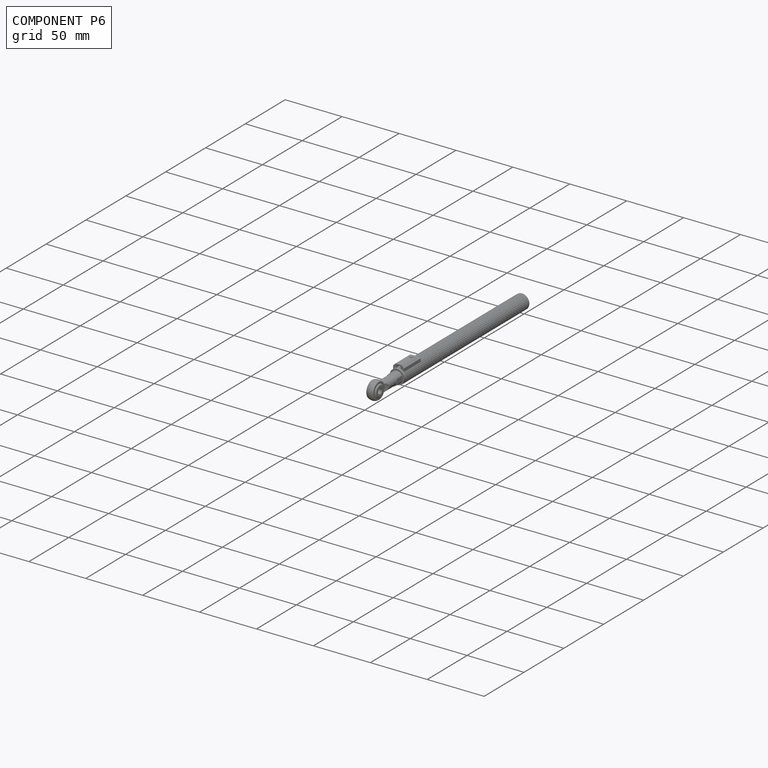
[diagram: component P6 — assembled]
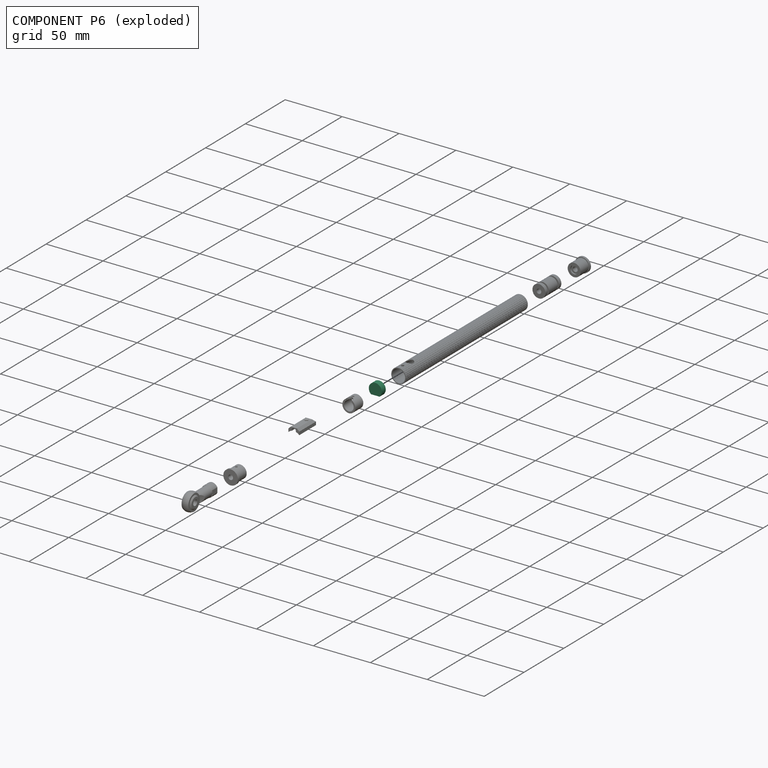
[diagram: component P6 — exploded]
COMPONENT P6 — recipe-attached (CADFS 00166295, mesh-verified: the recipe's output STEP matches this component's geometry to below the mesh-comparison resolution (tessellation chordal tolerance ~0.0239 mm)).
Held by: FASTENED mate "Fastened 2" to P8; FASTENED mate "Fastened 1" to P4; FASTENED mate "Fastened 1" to P4; FASTENED mate "Fastened 2" to P8.
Construction recipe (FeatureScript — the CAD program that rebuilds this solid; sketch coordinates are in the units given by the * unit suffixes, e.g. mm):

FeatureScript 1511;
import(path : "onshape/std/geometry.fs", version : "1511.0");
import(path : "onshape/std/common.fs", version : "1511.0");
const mm = millimeter;
const VERTEX = EntityType.VERTEX;
const EDGE = EntityType.EDGE;
const FACE = EntityType.FACE;
const BODY = EntityType.BODY;
function v(x, y){return vector(x, y);}
function OD(order){return orderDisambiguation(order);}
function OSD(set){return originalSetDisambiguation(set);}
function TD(topology){return topologyDisambiguation(topology);}
function TDD(query){return trueDependencyDisambiguation(query);}
function sQuery(a, b, c) {return sketchEntityQuery(a, b, c);}

annotation { "Feature Type Name" : "Feature", "Feature Type Description" : "" }
export const myFeature = defineFeature(function(context is Context, id is Id, definition is map)
    precondition{}
    {
        {
            assignVariable(context, id + "F0", {"name" : "Main_Length", "anyValue" : 5});
        }
        {
            var Q0;
            Q0=qCreatedBy(makeId("Front.planeOp"),FACE);
            var sketch = newSketch(context, id + "F1", { "sketchPlane" : qUnion([Q0])});
            skArc(sketch, "E0", {"start": v(-3.74, 4.3) * mm, "mid": v(0, -5.7) * mm, "end": v(3.74, 4.3) * mm});
            skLineSegment(sketch, "E1", {"start": v(-3.74, 4.3) * mm, "end": v(3.74, 4.3) * mm});
            skSolve(sketch);
        }
        {
            var Q0;
            Q0=makeQuery(id+"F1.imprint","IMPRINT",FACE,{"disambiguationData":[TD([[makeQuery(id+"F1.imprint","IMPRINT",EDGE,{"derivedFrom":sQuery(id+"F1.wireOp",EDGE,"E0")}),1.0]])]});
            extrude(context, id + "F2", {"entities" : qUnion([Q0]), "depth" : (getVariable(context, 'Main_Length')) * mm});
        }
    });
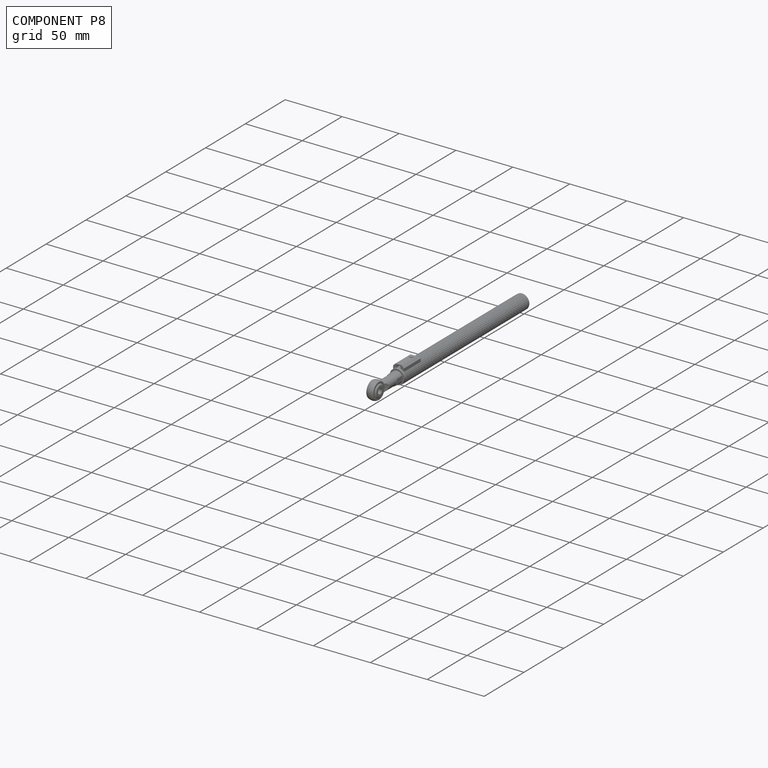
[diagram: component P8 — assembled]
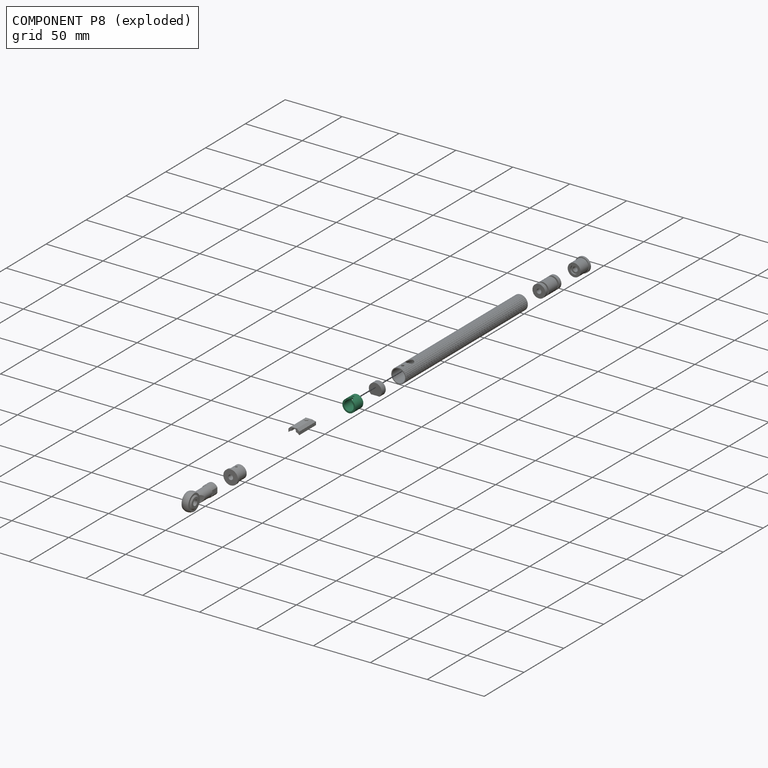
[diagram: component P8 — exploded]
COMPONENT P8 — recipe-attached (CADFS 00166282, mesh-verified: the recipe's output STEP matches this component's geometry to below the mesh-comparison resolution (tessellation chordal tolerance ~0.0285 mm)).
Held by: FASTENED mate "Fastened 2" to P6; FASTENED mate "Fastened 2" to P6.
Construction recipe (FeatureScript — the CAD program that rebuilds this solid; sketch coordinates are in the units given by the * unit suffixes, e.g. mm):

FeatureScript 1511;
import(path : "onshape/std/geometry.fs", version : "1511.0");
import(path : "onshape/std/common.fs", version : "1511.0");
const mm = millimeter;
const VERTEX = EntityType.VERTEX;
const EDGE = EntityType.EDGE;
const FACE = EntityType.FACE;
const BODY = EntityType.BODY;
function v(x, y){return vector(x, y);}
function OD(order){return orderDisambiguation(order);}
function OSD(set){return originalSetDisambiguation(set);}
function TD(topology){return topologyDisambiguation(topology);}
function TDD(query){return trueDependencyDisambiguation(query);}
function sQuery(a, b, c) {return sketchEntityQuery(a, b, c);}

annotation { "Feature Type Name" : "Feature", "Feature Type Description" : "" }
export const myFeature = defineFeature(function(context is Context, id is Id, definition is map)
    precondition{}
    {
        {
            assignVariable(context, id + "F0", {"name" : "Main_Length", "anyValue" : 10});
        }
        {
            var Q0;
            Q0=qCreatedBy(makeId("Front.planeOp"),FACE);
            var sketch = newSketch(context, id + "F1", { "sketchPlane" : qUnion([Q0])});
            skCircle(sketch, "E0", {"center": v(0, 0) * mm, "radius": 5.7 * mm});
            skCircle(sketch, "E1", {"center": v(0, 0) * mm, "radius": 4.25 * mm});
            skSolve(sketch);
        }
        {
            var Q0;
            Q0=makeQuery(id+"F1.imprint","IMPRINT",FACE,{"disambiguationData":[TD([[makeQuery(id+"F1.imprint","IMPRINT",EDGE,{"derivedFrom":sQuery(id+"F1.wireOp",EDGE,"E0")}),1.0]])]});
            extrude(context, id + "F2", {"entities" : qUnion([Q0]), "depth" : (getVariable(context, 'Main_Length')) * mm});
        }
        {
            var Q0;
            Q0=qCreatedBy(makeId("Top.planeOp"),FACE);
            var sketch = newSketch(context, id + "F3", { "sketchPlane" : qUnion([Q0])});
            skArc(sketch, "E2", {"start": v(2.5, -9) * mm, "mid": v(0, -6.5) * mm, "end": v(-2.5, -9) * mm});
            skLineSegment(sketch, "E3", {"start": v(-2.5, -9) * mm, "end": v(-2.5, -10) * mm});
            skLineSegment(sketch, "E4", {"start": v(2.5, -9) * mm, "end": v(2.5, -10) * mm});
            skLineSegment(sketch, "E5.0", {"start": v(5.7, -10) * mm, "end": v(-5.7, -10) * mm});
            skCircle(sketch, "E6", {"center": v(0, -5) * mm, "radius": 1 * mm});
            skSolve(sketch);
        }
        {
            var Q0;
            Q0=makeQuery(id+"F3.imprint","IMPRINT",FACE,{"disambiguationData":[TD([[makeQuery(id+"F3.imprint","IMPRINT",EDGE,{"derivedFrom":sQuery(id+"F3.wireOp",EDGE,"E6")}),1.0]])]});
            var Q1;
            Q1=makeQuery(id+"F3.imprint","IMPRINT",FACE,{"disambiguationData":[TD([[makeQuery(id+"F3.imprint","IMPRINT",EDGE,{"derivedFrom":sQuery(id+"F3.wireOp",EDGE,"E2")}),1.0]])]});
            extrude(context, id + "F4", {"entities" : qUnion([Q0, Q1]), "operationType" : NewBodyOperationType.REMOVE, "endBound" : BoundingType.THROUGH_ALL, "depth" : 25 * mm});
        }
    });
